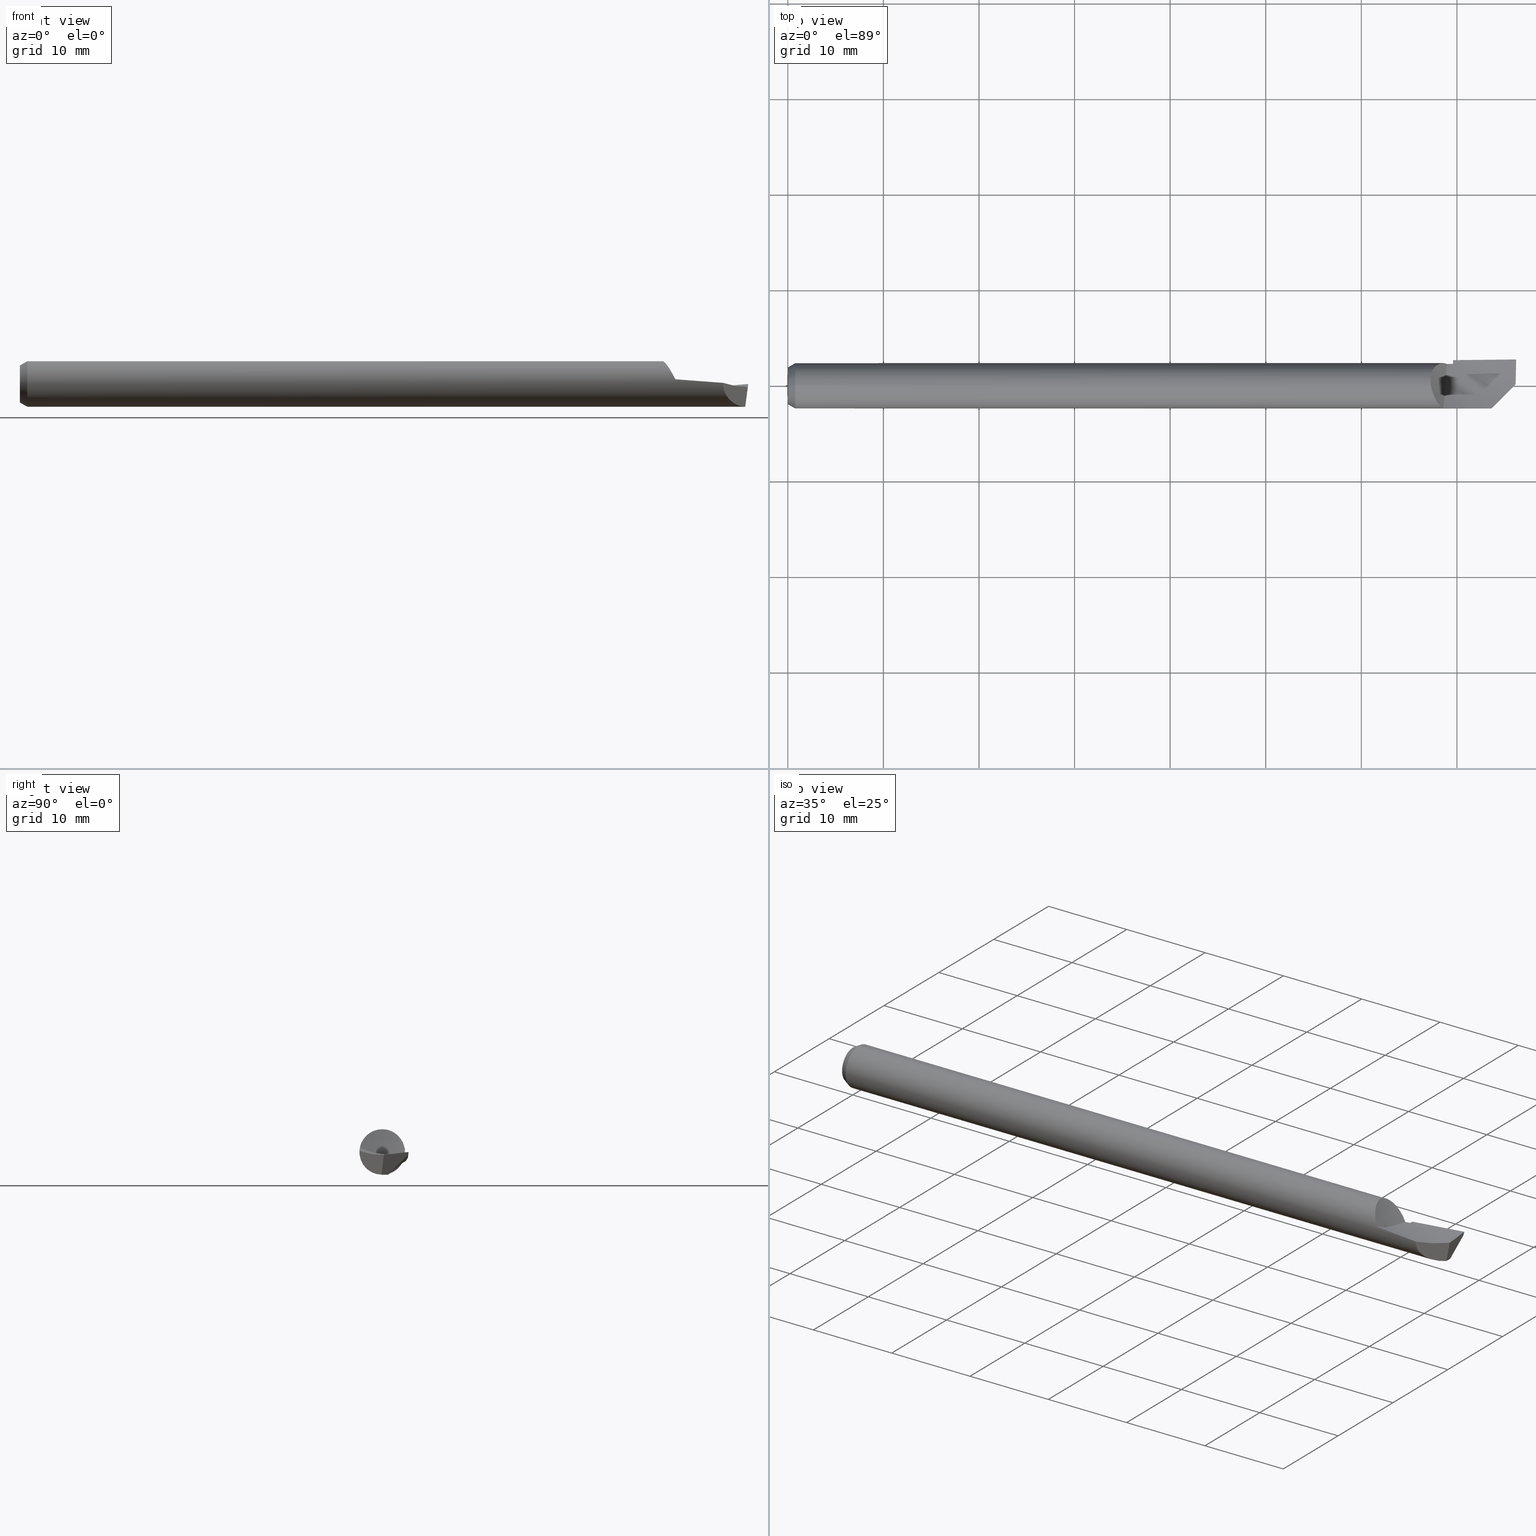
[diagram: canonical four-view strip — front | top / right | iso, engineering-drawing reading convention]
A machine part, canonical four-view strip (front | top / right | iso — engineering-drawing reading convention). The complete STEP part file that produces these views, byte-faithful:
ISO-10303-21;
HEADER;
FILE_DESCRIPTION (( 'STEP AP203' ),
    '1' );
FILE_NAME ('215757-HB210L.STEP',
    '2024-07-31T18:24:21',
    ( '' ),
    ( '' ),
    'SwSTEP 2.0',
    'SolidWorks 2024',
    '' );
FILE_SCHEMA (( 'CONFIG_CONTROL_DESIGN' ));
ENDSEC;

DATA;
#1 = CYLINDRICAL_SURFACE ( 'NONE', #328, 0.09364999999999999714 ) ;
#2 = ORIENTED_EDGE ( 'NONE', *, *, #272, .F. ) ;
#3 = DIRECTION ( 'NONE',  ( 0.000000000000000000, 0.2789911060392298858, 0.9602936856769428431 ) ) ;
#4 = CARTESIAN_POINT ( 'NONE',  ( 2.608888888888890367, -0.1464554548162472769, 0.06217323221623742568 ) ) ;
#5 = ORIENTED_EDGE ( 'NONE', *, *, #413, .F. ) ;
#6 = CARTESIAN_POINT ( 'NONE',  ( 2.421428571428573040, -0.06823486854704864657, -0.1112492264663436647 ) ) ;
#7 = CARTESIAN_POINT ( 'NONE',  ( 2.648731579005755954, 0.04212291331834908115, 0.08385177601506443867 ) ) ;
#8 = CARTESIAN_POINT ( 'NONE',  ( 2.740000000000000213, 0.01010341027200485978, -0.09310340273521444665 ) ) ;
#9 = ORIENTED_EDGE ( 'NONE', *, *, #608, .F. ) ;
#10 = APPROVAL_STATUS ( 'not_yet_approved' ) ;
#11 = EDGE_CURVE ( 'NONE', #238, #373, #43, .T. ) ;
#12 = DIRECTION ( 'NONE',  ( 0.000000000000000000, 0.000000000000000000, -1.000000000000000000 ) ) ;
#13 = CC_DESIGN_PERSON_AND_ORGANIZATION_ASSIGNMENT ( #613, #394, ( #73 ) ) ;
#14 = PLANE ( 'NONE',  #71 ) ;
#15 = VERTEX_POINT ( 'NONE', #429 ) ;
#16 = COORDINATED_UNIVERSAL_TIME_OFFSET ( 8, 0, .BEHIND. ) ;
#17 =( BOUNDED_CURVE ( )  B_SPLINE_CURVE ( 3, ( #324, #480, #331, #125 ),
 .UNSPECIFIED., .F., .T. ) 
 B_SPLINE_CURVE_WITH_KNOTS ( ( 4, 4 ),
 ( 9.255808676291139381E-05, 0.0004782894125386866571 ),
 .UNSPECIFIED. ) 
 CURVE ( )  GEOMETRIC_REPRESENTATION_ITEM ( )  RATIONAL_B_SPLINE_CURVE ( ( 0.9805422023702108358, 0.9794517822317697631, 0.9784376960691193448, 0.9774999438822595810 ) ) 
 REPRESENTATION_ITEM ( '' )  );
#18 = CARTESIAN_POINT ( 'NONE',  ( 2.740000000000011315, 0.1060807370296387303, -0.02278436374465247008 ) ) ;
#19 = FACE_OUTER_BOUND ( 'NONE', #576, .T. ) ;
#20 = ORIENTED_EDGE ( 'NONE', *, *, #11, .F. ) ;
#21 = B_SPLINE_CURVE_WITH_KNOTS ( 'NONE', 3,
 ( #155, #203, #108, #619 ),
 .UNSPECIFIED., .F., .F.,
 ( 4, 4 ),
 ( 8.350654211293258441E-05, 0.003719369236180132456 ),
 .UNSPECIFIED. ) ;
#22 = DIRECTION ( 'NONE',  ( 0.8660254037844377084, 0.000000000000000000, -0.5000000000000012212 ) ) ;
#23 = CARTESIAN_POINT ( 'NONE',  ( 2.729999274822195510, 0.08034742759774916865, -0.04811042881477657629 ) ) ;
#24 = CARTESIAN_POINT ( 'NONE',  ( 2.998093014994710259, 0.1033114702713285454, -0.01516179632514422226 ) ) ;
#25 = ORIENTED_EDGE ( 'NONE', *, *, #295, .T. ) ;
#26 = B_SPLINE_CURVE_WITH_KNOTS ( 'NONE', 3,
 ( #585, #127, #281, #116 ),
 .UNSPECIFIED., .F., .F.,
 ( 4, 4 ),
 ( 0.0002546024990688713929, 0.006558907732038860190 ),
 .UNSPECIFIED. ) ;
#27 = CARTESIAN_POINT ( 'NONE',  ( 2.713645702931099191, 0.09128810367982466423, -0.02113646257700518838 ) ) ;
#28 = APPROVAL_STATUS ( 'not_yet_approved' ) ;
#29 = DIRECTION ( 'NONE',  ( 0.000000000000000000, 0.000000000000000000, 1.000000000000000000 ) ) ;
#30 = EDGE_CURVE ( 'NONE', #238, #315, #17, .T. ) ;
#31 = EDGE_CURVE ( 'NONE', #15, #461, #356, .T. ) ;
#32 = CARTESIAN_POINT ( 'NONE',  ( 2.657153545848679688, 0.06553243476681322455, 0.06690271648742038280 ) ) ;
#33 = CALENDAR_DATE ( 2024, 31, 7 ) ;
#34 = CARTESIAN_POINT ( 'NONE',  ( 2.648823123821432368, 0.0002083311573135265935, 0.09365000102506688962 ) ) ;
#35 = DIRECTION ( 'NONE',  ( 0.000000000000000000, 0.000000000000000000, 1.000000000000000000 ) ) ;
#36 = CARTESIAN_POINT ( 'NONE',  ( 2.648000000000000131, 0.03666875582908381281, 0.08617264557820557280 ) ) ;
#37 = VECTOR ( 'NONE', #45, 39.37007874015748143 ) ;
#38 = LOCAL_TIME ( 11, 24, 21.00000000000000000, #556 ) ;
#39 = CARTESIAN_POINT ( 'NONE',  ( 2.710961540492777377, 0.09224549721883372466, -0.01700594925194776064 ) ) ;
#40 = CARTESIAN_POINT ( 'NONE',  ( 2.729999274822195510, 0.08034742759774916865, -0.04811042881477657629 ) ) ;
#41 = DIRECTION ( 'NONE',  ( 0.000000000000000000, 0.000000000000000000, 1.000000000000000000 ) ) ;
#42 = DIRECTION ( 'NONE',  ( -1.000000000000000000, -0.000000000000000000, -0.000000000000000000 ) ) ;
#43 =( BOUNDED_CURVE ( )  B_SPLINE_CURVE ( 2, ( #181, #234, #440 ),
 .UNSPECIFIED., .F., .T. ) 
 B_SPLINE_CURVE_WITH_KNOTS ( ( 3, 3 ),
 ( 0.6680663190920054229, 1.000000000000000000 ),
 .UNSPECIFIED. ) 
 CURVE ( )  GEOMETRIC_REPRESENTATION_ITEM ( )  RATIONAL_B_SPLINE_CURVE ( ( 0.9805422023702408119, 0.9779011347166750578, 0.9859596877570645512 ) ) 
 REPRESENTATION_ITEM ( '' )  );
#44 = PLANE ( 'NONE',  #318 ) ;
#45 = DIRECTION ( 'NONE',  ( 0.000000000000000000, -1.000000000000000000, -0.000000000000000000 ) ) ;
#46 = VERTEX_POINT ( 'NONE', #652 ) ;
#47 = VECTOR ( 'NONE', #77, 39.37007874015748143 ) ;
#48 = CARTESIAN_POINT ( 'NONE',  ( 2.740000000000000213, 0.000000000000000000, 0.000000000000000000 ) ) ;
#49 = EDGE_LOOP ( 'NONE', ( #191, #208, #164, #135, #322, #337 ) ) ;
#50 = ADVANCED_FACE ( 'NONE', ( #596 ), #456, .T. ) ;
#51 = EDGE_CURVE ( 'NONE', #389, #623, #408, .T. ) ;
#52 = DIRECTION ( 'NONE',  ( 1.000000000000000000, 0.000000000000000000, 0.000000000000000000 ) ) ;
#53 = PLANE ( 'NONE',  #640 ) ;
#54 = VERTEX_POINT ( 'NONE', #241 ) ;
#55 = LINE ( 'NONE', #368, #481 ) ;
#56 = VERTEX_POINT ( 'NONE', #669 ) ;
#57 = AXIS2_PLACEMENT_3D ( 'NONE', #59, #591, #3 ) ;
#58 = AXIS2_PLACEMENT_3D ( 'NONE', #513, #41, #624 ) ;
#59 = CARTESIAN_POINT ( 'NONE',  ( 2.648000000000000131, 0.1361715977094479224, 0.4687057136170372784 ) ) ;
#60 = DIRECTION ( 'NONE',  ( 0.000000000000000000, -0.000000000000000000, 1.000000000000000000 ) ) ;
#61 = ORIENTED_EDGE ( 'NONE', *, *, #245, .T. ) ;
#62 = CARTESIAN_POINT ( 'NONE',  ( 2.648000000000000131, 0.000000000000000000, 0.000000000000000000 ) ) ;
#63 = CARTESIAN_POINT ( 'NONE',  ( 2.660267250213738333, -0.04047724806400845171, 0.08466018272255887434 ) ) ;
#64 = ORIENTED_EDGE ( 'NONE', *, *, #244, .T. ) ;
#65 = CARTESIAN_POINT ( 'NONE',  ( 2.987532024933764241, -0.002509253967205157896, -0.09364999999999999714 ) ) ;
#66 = ORIENTED_EDGE ( 'NONE', *, *, #75, .F. ) ;
#67 = ADVANCED_FACE ( 'NONE', ( #458 ), #507, .T. ) ;
#68 = B_SPLINE_CURVE_WITH_KNOTS ( 'NONE', 3,
 ( #651, #121, #444, #180, #488, #377, #439, #176, #124, #321 ),
 .UNSPECIFIED., .F., .F.,
 ( 4, 3, 3, 4 ),
 ( 0.000000000000000000, 0.0001024766680105460346, 0.0002561918832182322886, 0.0004099073060419816780 ),
 .UNSPECIFIED. ) ;
#69 = APPLICATION_PROTOCOL_DEFINITION ( 'international standard', 'config_control_design', 1994, #544 ) ;
#70 = CARTESIAN_POINT ( 'NONE',  ( 2.700193042709060354, -0.09159678206204596718, 0.01949988679965270963 ) ) ;
#71 = AXIS2_PLACEMENT_3D ( 'NONE', #172, #545, #592 ) ;
#72 = CARTESIAN_POINT ( 'NONE',  ( 2.614285714285715212, 0.09364225179700762236, -0.04619814537202305421 ) ) ;
#73 = PRODUCT_DEFINITION_FORMATION_WITH_SPECIFIED_SOURCE ( 'ANY', '', #257, .NOT_KNOWN. ) ;
#74 = CARTESIAN_POINT ( 'NONE',  ( 2.987763293907419904, 0.02399154554081830634, -0.09364999999999999714 ) ) ;
#75 = EDGE_CURVE ( 'NONE', #543, #552, #459, .T. ) ;
#76 = PLANE ( 'NONE',  #605 ) ;
#77 = DIRECTION ( 'NONE',  ( -1.000000000000000000, -0.000000000000000000, -0.000000000000000000 ) ) ;
#78 = ORIENTED_EDGE ( 'NONE', *, *, #11, .T. ) ;
#79 = CARTESIAN_POINT ( 'NONE',  ( 2.671780070111328342, 0.08324920488106214711, 0.04294035540791946159 ) ) ;
#80 = CARTESIAN_POINT ( 'NONE',  ( 2.648853733171861347, -8.222118150690407239E-07, 0.09365456280322455307 ) ) ;
#81 = ORIENTED_EDGE ( 'NONE', *, *, #313, .F. ) ;
#82 = CARTESIAN_POINT ( 'NONE',  ( 2.999392605994886107, 0.09182044360717109277, -0.003761190601293711629 ) ) ;
#83 = EDGE_CURVE ( 'NONE', #259, #269, #236, .T. ) ;
#84 = EDGE_LOOP ( 'NONE', ( #287, #675, #466, #603 ) ) ;
#85 = AXIS2_PLACEMENT_3D ( 'NONE', #243, #149, #666 ) ;
#86 = CARTESIAN_POINT ( 'NONE',  ( 2.694519981529421404, 0.09329194702683742124, 0.008192209811309534087 ) ) ;
#87 = PERSON_AND_ORGANIZATION ( #301, #606 ) ;
#88 = DIRECTION ( 'NONE',  ( 1.000000000000000000, 0.000000000000000000, 0.000000000000000000 ) ) ;
#89 = CARTESIAN_POINT ( 'NONE',  ( 2.655662571347638501, 0.06272228013036625083, 0.06957321465527964433 ) ) ;
#90 = CARTESIAN_POINT ( 'NONE',  ( 2.716830442783150001, 0.1061611452323789617, -0.02444580399539316232 ) ) ;
#91 = CARTESIAN_POINT ( 'NONE',  ( 2.704122698830285998, 0.09357548210034773162, -0.006485616146303971145 ) ) ;
#92 = PERSON_AND_ORGANIZATION_ROLE ( 'classification_officer' ) ;
#93 = CARTESIAN_POINT ( 'NONE',  ( 2.740000000000000213, 0.09364999999999999714, -0.09364999999999999714 ) ) ;
#94 =( BOUNDED_CURVE ( )  B_SPLINE_CURVE ( 2, ( #24, #184, #375 ),
 .UNSPECIFIED., .F., .T. ) 
 B_SPLINE_CURVE_WITH_KNOTS ( ( 3, 3 ),
 ( 0.002502368612308748450, 0.3365654910811018419 ),
 .UNSPECIFIED. ) 
 CURVE ( )  GEOMETRIC_REPRESENTATION_ITEM ( )  RATIONAL_B_SPLINE_CURVE ( ( 0.9998773835097440887, 0.9917339761046763957, 0.9945822379532470725 ) ) 
 REPRESENTATION_ITEM ( '' )  );
#95 = AXIS2_PLACEMENT_3D ( 'NONE', #582, #112, #320 ) ;
#96 = CC_DESIGN_SECURITY_CLASSIFICATION ( #442, ( #73 ) ) ;
#97 = CARTESIAN_POINT ( 'NONE',  ( 2.648000000000001908, -0.004899846547459479028, 0.09241289850418150931 ) ) ;
#98 = CARTESIAN_POINT ( 'NONE',  ( 2.421428571428573040, 0.08632518439822819967, -0.06102962101362140179 ) ) ;
#99 = CARTESIAN_POINT ( 'NONE',  ( 2.804444444444444962, -0.05801151602296240190, -0.01215007406928548216 ) ) ;
#100 = ORIENTED_EDGE ( 'NONE', *, *, #83, .F. ) ;
#101 = ADVANCED_FACE ( 'NONE', ( #351 ), #206, .T. ) ;
#102 = FACE_OUTER_BOUND ( 'NONE', #84, .T. ) ;
#103 = EDGE_CURVE ( 'NONE', #46, #543, #574, .T. ) ;
#104 = EDGE_LOOP ( 'NONE', ( #111, #398, #635, #133 ) ) ;
#105 = PERSON_AND_ORGANIZATION_ROLE ( 'design_owner' ) ;
#106 = CARTESIAN_POINT ( 'NONE',  ( 2.734997358170834225, 0.009725048957912103831, -0.09314446181012504822 ) ) ;
#107 = EDGE_LOOP ( 'NONE', ( #579, #659, #437, #317, #308, #114, #130, #220 ) ) ;
#108 = CARTESIAN_POINT ( 'NONE',  ( 2.930128296819551004, -0.06052170318045124731, -0.007005743369842811798 ) ) ;
#109 = PRODUCT_DEFINITION ( 'UNKNOWN', '', #73, #326 ) ;
#110 = DIRECTION ( 'NONE',  ( 1.000000000000000000, 0.000000000000000000, -0.000000000000000000 ) ) ;
#111 = ORIENTED_EDGE ( 'NONE', *, *, #295, .F. ) ;
#112 = DIRECTION ( 'NONE',  ( 1.000000000000000000, 0.000000000000000000, 0.000000000000000000 ) ) ;
#113 = CARTESIAN_POINT ( 'NONE',  ( 2.413333333333334885, 0.1493616491026159843, -0.06033940939105427587 ) ) ;
#114 = ORIENTED_EDGE ( 'NONE', *, *, #294, .T. ) ;
#115 = AXIS2_PLACEMENT_3D ( 'NONE', #500, #137, #616 ) ;
#116 = CARTESIAN_POINT ( 'NONE',  ( 2.987763293907419904, 0.02399154554081830634, -0.09364999999999999714 ) ) ;
#117 = DIRECTION ( 'NONE',  ( 1.000000000000000000, -0.000000000000000000, -0.000000000000000000 ) ) ;
#118 = ORIENTED_EDGE ( 'NONE', *, *, #51, .T. ) ;
#119 = COORDINATED_UNIVERSAL_TIME_OFFSET ( 8, 0, .BEHIND. ) ;
#120 = DIRECTION ( 'NONE',  ( -1.000000000000000000, -0.000000000000000000, -0.000000000000000000 ) ) ;
#121 = CARTESIAN_POINT ( 'NONE',  ( 2.998251865374560676, 0.1037458191330261348, -0.01389898307391907069 ) ) ;
#122 = ORIENTED_EDGE ( 'NONE', *, *, #224, .T. ) ;
#123 = CARTESIAN_POINT ( 'NONE',  ( 2.897117201850305079, -0.09353279814969600592, 0.004683820052929582589 ) ) ;
#124 = CARTESIAN_POINT ( 'NONE',  ( 2.999761529745958555, 0.1078543937081328369, -0.001896225925224536172 ) ) ;
#125 = CARTESIAN_POINT ( 'NONE',  ( 2.740000000000000213, 0.09093235533035093354, -0.02239708137674525229 ) ) ;
#126 = ADVANCED_FACE ( 'NONE', ( #400 ), #385, .T. ) ;
#127 = CARTESIAN_POINT ( 'NONE',  ( 2.822563398559102321, 0.01457830066443164228, -0.09364999999999995550 ) ) ;
#128 = VECTOR ( 'NONE', #222, 39.37007874015748854 ) ;
#129 = LINE ( 'NONE', #65, #339 ) ;
#130 = ORIENTED_EDGE ( 'NONE', *, *, #411, .T. ) ;
#131 = CARTESIAN_POINT ( 'NONE',  ( 0.000000000000000000, 0.000000000000000000, -0.07599999999999999811 ) ) ;
#132 = CARTESIAN_POINT ( 'NONE',  ( 0.03057069675359059061, 0.000000000000000000, 0.000000000000000000 ) ) ;
#133 = ORIENTED_EDGE ( 'NONE', *, *, #312, .T. ) ;
#134 = APPROVAL_DATE_TIME ( #497, #246 ) ;
#135 = ORIENTED_EDGE ( 'NONE', *, *, #588, .F. ) ;
#136 = VECTOR ( 'NONE', #22, 39.37007874015748854 ) ;
#137 = DIRECTION ( 'NONE',  ( 1.000000000000000000, 0.000000000000000000, 0.000000000000000000 ) ) ;
#138 = EDGE_LOOP ( 'NONE', ( #384, #266, #526, #433, #649 ) ) ;
#139 = CARTESIAN_POINT ( 'NONE',  ( 2.740000000000000213, 0.01010341027200485978, -0.09310340273521444665 ) ) ;
#140 = COORDINATED_UNIVERSAL_TIME_OFFSET ( 8, 0, .BEHIND. ) ;
#141 = CARTESIAN_POINT ( 'NONE',  ( 2.739999999999999769, 0.08074344207419087427, -0.04744279778861887342 ) ) ;
#142 = CARTESIAN_POINT ( 'NONE',  ( 2.674651292824941962, 0.08538032817279563036, 0.03847803143859999248 ) ) ;
#143 = PERSON_AND_ORGANIZATION_ROLE ( 'design_supplier' ) ;
#144 = CARTESIAN_POINT ( 'NONE',  ( 2.894336912536108919, -0.09631308746389261044, -0.05083672434967949350 ) ) ;
#145 = CARTESIAN_POINT ( 'NONE',  ( 2.807142857142857828, 0.1085000000000000131, -0.01718471177521218446 ) ) ;
#146 = CARTESIAN_POINT ( 'NONE',  ( 2.734997358171129545, 0.08055064010576531985, -0.04777092967153879349 ) ) ;
#147 = APPROVAL_PERSON_ORGANIZATION ( #380, #246, #187 ) ;
#148 = CARTESIAN_POINT ( 'NONE',  ( 2.228571428571430424, 0.07478306174353623048, -0.07287409439362664554 ) ) ;
#149 = DIRECTION ( 'NONE',  ( -1.000000000000000000, -0.000000000000000000, -0.000000000000000000 ) ) ;
#150 = ORIENTED_EDGE ( 'NONE', *, *, #272, .T. ) ;
#151 = EDGE_CURVE ( 'NONE', #238, #546, #170, .T. ) ;
#152 = EDGE_CURVE ( 'NONE', #638, #416, #482, .T. ) ;
#153 = CARTESIAN_POINT ( 'NONE',  ( 3.000000000000000444, 0.05471458349321915021, -0.02081601275344908270 ) ) ;
#154 = VERTEX_POINT ( 'NONE', #662 ) ;
#155 = CARTESIAN_POINT ( 'NONE',  ( 2.997655768038555379, 0.007005768038554139807, -0.01187811945948918924 ) ) ;
#156 = CARTESIAN_POINT ( 'NONE',  ( 2.217777777777779846, -0.1200748292999250927, 0.1043874820955170424 ) ) ;
#157 = ORIENTED_EDGE ( 'NONE', *, *, #51, .F. ) ;
#158 = CIRCLE ( 'NONE', #298, 0.07599999999999999811 ) ;
#159 = CARTESIAN_POINT ( 'NONE',  ( 2.228571428571430424, 0.08777834388968180912, -0.06377469987373332594 ) ) ;
#160 = CARTESIAN_POINT ( 'NONE',  ( 2.668957525983355783, -0.05845340694801681725, 0.07316804903374447833 ) ) ;
#161 = VERTEX_POINT ( 'NONE', #204 ) ;
#162 = CARTESIAN_POINT ( 'NONE',  ( 2.998093014994710259, 0.1033114702713285454, -0.01516179632514422226 ) ) ;
#163 = CARTESIAN_POINT ( 'NONE',  ( 2.413333333333334885, -0.05892680970412268737, 0.006371137203487211263 ) ) ;
#164 = ORIENTED_EDGE ( 'NONE', *, *, #610, .T. ) ;
#165 = PERSON_AND_ORGANIZATION ( #301, #606 ) ;
#166 = CARTESIAN_POINT ( 'NONE',  ( 2.715594912558478846, 0.09047690327886794004, -0.02417131508764841161 ) ) ;
#167 = CARTESIAN_POINT ( 'NONE',  ( 0.000000000000000000, 0.000000000000000000, 0.000000000000000000 ) ) ;
#168 = ORIENTED_EDGE ( 'NONE', *, *, #547, .T. ) ;
#169 = DIRECTION ( 'NONE',  ( -1.000000000000000000, -0.000000000000000000, -0.000000000000000000 ) ) ;
#170 = CIRCLE ( 'NONE', #510, 0.1084999999999999992 ) ;
#171 = DIRECTION ( 'NONE',  ( 0.000000000000000000, 0.000000000000000000, 1.000000000000000000 ) ) ;
#172 = CARTESIAN_POINT ( 'NONE',  ( 2.882908368565248125, -0.1077416314347533766, -0.09999999999999999167 ) ) ;
#173 = VERTEX_POINT ( 'NONE', #406 ) ;
#174 = LINE ( 'NONE', #288, #136 ) ;
#175 = EDGE_CURVE ( 'NONE', #173, #389, #366, .T. ) ;
#176 = CARTESIAN_POINT ( 'NONE',  ( 2.999523095650473703, 0.1072076760968982967, -0.003792078390238544112 ) ) ;
#177 = ADVANCED_FACE ( 'NONE', ( #353 ), #563, .F. ) ;
#178 = UNCERTAINTY_MEASURE_WITH_UNIT (LENGTH_MEASURE( 1.000000000000000082E-05 ), #573, 'distance_accuracy_value', 'NONE');
#179 = CARTESIAN_POINT ( 'NONE',  ( 2.705461078765242888, -0.03340762941110823198, -0.004274625996444173480 ) ) ;
#180 = CARTESIAN_POINT ( 'NONE',  ( 2.998569614866263500, 0.1046130388257509453, -0.01137285464977744187 ) ) ;
#181 = CARTESIAN_POINT ( 'NONE',  ( 2.740000000000000657, 0.1061466846906607003, -0.02247512690023037440 ) ) ;
#182 = B_SPLINE_CURVE_WITH_KNOTS ( 'NONE', 3,
 ( #387, #82, #599, #399, #499, #333 ),
 .UNSPECIFIED., .F., .F.,
 ( 4, 2, 4 ),
 ( 1.390217896785067265E-20, 0.001298834698926967096, 0.002597669397853934192 ),
 .UNSPECIFIED. ) ;
#183 = CARTESIAN_POINT ( 'NONE',  ( 2.997655768038555379, 0.007005768038554139807, -0.01187811945948918924 ) ) ;
#184 = CARTESIAN_POINT ( 'NONE',  ( 2.869734063093712262, 0.1017135818884408738, -0.02604970133489085959 ) ) ;
#185 = LOCAL_TIME ( 11, 24, 21.00000000000000000, #140 ) ;
#186 = CARTESIAN_POINT ( 'NONE',  ( 2.998093014994710259, 0.1033114702713285454, -0.01516179632514422226 ) ) ;
#187 = APPROVAL_ROLE ( '' ) ;
#188 = CARTESIAN_POINT ( 'NONE',  ( 2.694772460887948196, 0.09332505324249035228, 0.007808570231833748300 ) ) ;
#189 = CARTESIAN_POINT ( 'NONE',  ( 0.03057069675359059061, 0.000000000000000000, 0.000000000000000000 ) ) ;
#190 = APPROVAL_ROLE ( '' ) ;
#191 = ORIENTED_EDGE ( 'NONE', *, *, #31, .T. ) ;
#192 = CARTESIAN_POINT ( 'NONE',  ( 2.659837862559129018, 0.07019894292448461415, 0.06219465053792666565 ) ) ;
#193 = CARTESIAN_POINT ( 'NONE',  ( 2.648774162755310968, 0.0005224480527187959182, 0.09364890627534445955 ) ) ;
#194 = CARTESIAN_POINT ( 'NONE',  ( 2.674087616056178174, 0.08498293252717993573, 0.03935073517130147774 ) ) ;
#195 = AXIS2_PLACEMENT_3D ( 'NONE', #297, #303, #248 ) ;
#196 = LINE ( 'NONE', #93, #37 ) ;
#197 = CARTESIAN_POINT ( 'NONE',  ( 2.666568753093929711, 0.07847585622821494356, 0.05118348085090287242 ) ) ;
#198 = EDGE_CURVE ( 'NONE', #370, #56, #196, .T. ) ;
#199 = DATE_AND_TIME ( #403, #185 ) ;
#200 = CARTESIAN_POINT ( 'NONE',  ( 2.699629502767317835, -0.1004152028337105679, 0.02348229429743947660 ) ) ;
#201 = ADVANCED_FACE ( 'NONE', ( #364 ), #1, .T. ) ;
#202 = CARTESIAN_POINT ( 'NONE',  ( 2.711257858874154270, 0.03503257738335101984, -0.02446814605735119982 ) ) ;
#203 = CARTESIAN_POINT ( 'NONE',  ( 2.963644875374282783, -0.02700512462571755257, -0.01248061532669236980 ) ) ;
#204 = CARTESIAN_POINT ( 'NONE',  ( 2.739999999999999769, 0.09788107471506568569, -0.03636530173190489351 ) ) ;
#205 = CARTESIAN_POINT ( 'NONE',  ( 2.807142857142857828, 0.1009593191957870867, -0.03136666973042469969 ) ) ;
#206 = B_SPLINE_SURFACE_WITH_KNOTS ( 'NONE', 1, 3, ( 
 ( #566, #97, #450, #250 ),
 ( #200, #557, #202, #90 ) ),
 .UNSPECIFIED., .F., .F., .F.,
 ( 2, 2 ),
 ( 4, 4 ),
 ( 0.000000000000000000, 1.000000000000000000 ),
 ( 0.01066537585226142240, 0.01494871533108532019 ),
 .UNSPECIFIED. ) ;
#207 = CARTESIAN_POINT ( 'NONE',  ( 2.217777777777779846, -0.05650037319417050563, 0.01531991718997334669 ) ) ;
#208 = ORIENTED_EDGE ( 'NONE', *, *, #313, .T. ) ;
#209 =( NAMED_UNIT ( * ) PLANE_ANGLE_UNIT ( ) SI_UNIT ( $, .RADIAN. ) );
#210 = CARTESIAN_POINT ( 'NONE',  ( 2.668921519492839511, -0.05838966857612346018, 0.07321969953285870081 ) ) ;
#211 = EDGE_LOOP ( 'NONE', ( #78, #643, #230 ) ) ;
#212 = CARTESIAN_POINT ( 'NONE',  ( 2.676653163846024697, -0.07108318674311248087, 0.06187157980703874433 ) ) ;
#213 = EDGE_LOOP ( 'NONE', ( #365, #25, #357, #5 ) ) ;
#214 = AXIS2_PLACEMENT_3D ( 'NONE', #404, #291, #29 ) ;
#215 = CARTESIAN_POINT ( 'NONE',  ( 2.608888888888889479, 0.04560415947165991080, -0.03670494071200245539 ) ) ;
#216 = ORIENTED_EDGE ( 'NONE', *, *, #505, .F. ) ;
#217 = PERSON_AND_ORGANIZATION ( #301, #606 ) ;
#218 = DIRECTION ( 'NONE',  ( 0.000000000000000000, 0.000000000000000000, 1.000000000000000000 ) ) ;
#219 = DIRECTION ( 'NONE',  ( 0.000000000000000000, 0.000000000000000000, 1.000000000000000000 ) ) ;
#220 = ORIENTED_EDGE ( 'NONE', *, *, #312, .F. ) ;
#221 = APPROVAL_ROLE ( '' ) ;
#222 = DIRECTION ( 'NONE',  ( 0.8660254037844377084, 6.123233995736780827E-17, 0.5000000000000012212 ) ) ;
#223 = ORIENTED_EDGE ( 'NONE', *, *, #378, .T. ) ;
#224 = EDGE_CURVE ( 'NONE', #543, #46, #55, .T. ) ;
#225 = EDGE_CURVE ( 'NONE', #558, #475, #460, .T. ) ;
#226 = CARTESIAN_POINT ( 'NONE',  ( 2.700193042709059466, -0.09159678206204596718, 0.01949988679965270963 ) ) ;
#227 = CARTESIAN_POINT ( 'NONE',  ( 2.652848608369792860, -0.01951221009786592228, 0.09225725620059177512 ) ) ;
#228 = ORIENTED_EDGE ( 'NONE', *, *, #342, .T. ) ;
#229 = CARTESIAN_POINT ( 'NONE',  ( 0.03057069675359059061, 1.146881727401496266E-17, 0.09364999999999999714 ) ) ;
#230 = ORIENTED_EDGE ( 'NONE', *, *, #151, .F. ) ;
#231 = CARTESIAN_POINT ( 'NONE',  ( 2.987553922861389655, 0.000000000000000000, -0.09364999999999999714 ) ) ;
#232 = DIRECTION ( 'NONE',  ( -1.000000000000000000, -0.000000000000000000, -0.000000000000000000 ) ) ;
#233 =( BOUNDED_CURVE ( )  B_SPLINE_CURVE ( 2, ( #530, #427, #18 ),
 .UNSPECIFIED., .F., .F. ) 
 B_SPLINE_CURVE_WITH_KNOTS ( ( 3, 3 ),
 ( 0.000000000000000000, 0.3365654910810868539 ),
 .UNSPECIFIED. ) 
 CURVE ( )  GEOMETRIC_REPRESENTATION_ITEM ( )  RATIONAL_B_SPLINE_CURVE ( ( 1.000000000000000000, 0.9917126406127588778, 0.9945822379532467394 ) ) 
 REPRESENTATION_ITEM ( '' )  );
#234 = CARTESIAN_POINT ( 'NONE',  ( 2.870718729444908135, 0.1084999999999999853, -0.01136076838170600213 ) ) ;
#235 = CARTESIAN_POINT ( 'NONE',  ( 2.740000000000011315, 0.1060807370296387303, -0.02278436374465247008 ) ) ;
#236 = CIRCLE ( 'NONE', #85, 0.09364999999999999714 ) ;
#237 = CARTESIAN_POINT ( 'NONE',  ( 2.614285714285715212, -0.04937609166404756389, -0.1190696311099668364 ) ) ;
#238 = VERTEX_POINT ( 'NONE', #268 ) ;
#239 = CARTESIAN_POINT ( 'NONE',  ( 2.983648606709209172, -0.007001393290791912104, -0.1249574340483061846 ) ) ;
#240 = CALENDAR_DATE ( 2024, 31, 7 ) ;
#241 = CARTESIAN_POINT ( 'NONE',  ( 2.715594912558478846, 0.09047690327886794004, -0.02417131508764841161 ) ) ;
#242 = CARTESIAN_POINT ( 'NONE',  ( 2.662293407963907566, 0.07366403736510236666, 0.05809885532553645676 ) ) ;
#243 = CARTESIAN_POINT ( 'NONE',  ( 0.03057069675359059061, 0.000000000000000000, 0.000000000000000000 ) ) ;
#244 = EDGE_CURVE ( 'NONE', #315, #552, #255, .T. ) ;
#245 = EDGE_CURVE ( 'NONE', #363, #46, #278, .T. ) ;
#246 = APPROVAL ( #10, 'UNSPECIFIED' ) ;
#247 = PERSON_AND_ORGANIZATION_ROLE ( 'creator' ) ;
#248 = DIRECTION ( 'NONE',  ( 0.000000000000000000, 0.000000000000000000, -1.000000000000000000 ) ) ;
#249 = B_SPLINE_CURVE_WITH_KNOTS ( 'NONE', 3,
 ( #166, #276, #325, #179, #374, #70 ),
 .UNSPECIFIED., .F., .F.,
 ( 4, 2, 4 ),
 ( 0.000000000000000000, 0.5000000000000000000, 1.000000000000000000 ),
 .UNSPECIFIED. ) ;
#250 = CARTESIAN_POINT ( 'NONE',  ( 2.647999999999999687, 0.1069463880967313069, 0.07909849010610427167 ) ) ;
#251 = CARTESIAN_POINT ( 'NONE',  ( 2.987533092774547150, -0.003116907225453840850, -0.09359811637713615073 ) ) ;
#252 = PRODUCT_RELATED_PRODUCT_CATEGORY ( 'detail', '', ( #257 ) ) ;
#253 =( NAMED_UNIT ( * ) SI_UNIT ( $, .STERADIAN. ) SOLID_ANGLE_UNIT ( ) );
#254 = FACE_OUTER_BOUND ( 'NONE', #539, .T. ) ;
#255 = CIRCLE ( 'NONE', #280, 0.09364999999999999714 ) ;
#256 = ORIENTED_EDGE ( 'NONE', *, *, #485, .F. ) ;
#257 = PRODUCT ( '215757-HB210L', '215757-HB210L', '', ( #457 ) ) ;
#258 = CARTESIAN_POINT ( 'NONE',  ( 2.669408579989107189, -0.05925361579904375731, 0.07252248217185128243 ) ) ;
#259 = VERTEX_POINT ( 'NONE', #310 ) ;
#260 = ADVANCED_FACE ( 'NONE', ( #254 ), #344, .T. ) ;
#261 = FACE_OUTER_BOUND ( 'NONE', #536, .T. ) ;
#262 = DIRECTION ( 'NONE',  ( 0.000000000000000000, 0.000000000000000000, 1.000000000000000000 ) ) ;
#263 = ORIENTED_EDGE ( 'NONE', *, *, #245, .F. ) ;
#264 = ADVANCED_FACE ( 'NONE', ( #102 ), #53, .F. ) ;
#265 = CARTESIAN_POINT ( 'NONE',  ( 0.03057069675359059061, 1.146881727401496266E-17, -0.09364999999999999714 ) ) ;
#266 = ORIENTED_EDGE ( 'NONE', *, *, #561, .F. ) ;
#267 = AXIS2_PLACEMENT_3D ( 'NONE', #506, #551, #35 ) ;
#268 = CARTESIAN_POINT ( 'NONE',  ( 2.740000000000000657, 0.1061466846906607003, -0.02247512690023037440 ) ) ;
#269 = VERTEX_POINT ( 'NONE', #265 ) ;
#270 = APPROVAL_STATUS ( 'not_yet_approved' ) ;
#271 = LINE ( 'NONE', #229, #128 ) ;
#272 = EDGE_CURVE ( 'NONE', #315, #54, #631, .T. ) ;
#273 = ORIENTED_EDGE ( 'NONE', *, *, #663, .T. ) ;
#274 = B_SPLINE_CURVE_WITH_KNOTS ( 'NONE', 3,
 ( #478, #7, #644, #487, #594, #290, #89, #451, #32, #494, #393, #192, #242, #197, #665, #612, #79, #338, #194, #501, #142, #656, #336, #443, #602, #562, #396, #607, #347, #555, #292, #86, #188, #390, #91, #39, #27, #438 ),
 .UNSPECIFIED., .F., .F.,
 ( 4, 2, 2, 1, 1, 2, 2, 2, 2, 1, 1, 1, 2, 2, 2, 2, 2, 1, 2, 2, 2, 4 ),
 ( 0.000000000000000000, 0.1250000000000851264, 0.1875000000001276756, 0.2187500000001489087, 0.2343750000001613432, 0.2421875000001675327, 0.2500000000001737499, 0.3750000000002465805, 0.4375000000002854939, 0.4687500000003073652, 0.4843750000003158029, 0.4921875000003201328, 0.4960937500003198553, 0.5000000000003195222, 0.6250000000002586820, 0.6875000000002282619, 0.7187500000002104983, 0.7343750000002016165, 0.7421875000001971756, 0.7500000000001926237, 0.8750000000000962563, 1.000000000000000000 ),
 .UNSPECIFIED. ) ;
#275 = APPROVAL ( #270, 'UNSPECIFIED' ) ;
#276 = CARTESIAN_POINT ( 'NONE',  ( 2.713059819998396627, 0.05925281071930989935, -0.02311055806310817820 ) ) ;
#277 = DIRECTION ( 'NONE',  ( 1.000000000000000000, 0.000000000000000000, 0.000000000000000000 ) ) ;
#278 =( BOUNDED_CURVE ( )  B_SPLINE_CURVE ( 2, ( #626, #106, #528 ),
 .UNSPECIFIED., .F., .T. ) 
 B_SPLINE_CURVE_WITH_KNOTS ( ( 3, 3 ),
 ( 0.3365654910811016753, 0.3494856403912289800 ),
 .UNSPECIFIED. ) 
 CURVE ( )  GEOMETRIC_REPRESENTATION_ITEM ( )  RATIONAL_B_SPLINE_CURVE ( ( 0.9945822379532471835, 0.9946923966803939976, 0.9948189969154069834 ) ) 
 REPRESENTATION_ITEM ( '' )  );
#279 = EDGE_LOOP ( 'NONE', ( #327, #216, #627, #157, #611 ) ) ;
#280 = AXIS2_PLACEMENT_3D ( 'NONE', #48, #474, #262 ) ;
#281 = CARTESIAN_POINT ( 'NONE',  ( 2.905162067882043786, 0.01930639470269341143, -0.09364999999999996938 ) ) ;
#282 = CARTESIAN_POINT ( 'NONE',  ( 2.421428571428573040, 0.08632518439822819967, -0.06102962101362140179 ) ) ;
#283 = CARTESIAN_POINT ( 'NONE',  ( 2.991181280851205937, 0.05065302880610503961, -0.06770867322618520645 ) ) ;
#284 = CARTESIAN_POINT ( 'NONE',  ( 0.000000000000000000, 0.000000000000000000, 0.09364999999999999714 ) ) ;
#285 = CARTESIAN_POINT ( 'NONE',  ( 0.000000000000000000, 1.038806647376742246E-17, 0.07599999999999999811 ) ) ;
#286 = CARTESIAN_POINT ( 'NONE',  ( 3.000000000000000444, -0.01016491419934357175, -0.1284999999999999754 ) ) ;
#287 = ORIENTED_EDGE ( 'NONE', *, *, #538, .T. ) ;
#288 = CARTESIAN_POINT ( 'NONE',  ( 0.03057069675359059061, 0.000000000000000000, -0.09364999999999999714 ) ) ;
#289 = CARTESIAN_POINT ( 'NONE',  ( 2.700000000000000178, 0.000000000000000000, -0.09364999999999999714 ) ) ;
#290 = CARTESIAN_POINT ( 'NONE',  ( 2.654840748994309330, 0.06097772784957117276, 0.07109433443434577671 ) ) ;
#291 = DIRECTION ( 'NONE',  ( -1.000000000000000000, -0.000000000000000000, -0.000000000000000000 ) ) ;
#292 = CARTESIAN_POINT ( 'NONE',  ( 2.693968417897632417, 0.09321453594628095751, 0.009030502199227652751 ) ) ;
#293 = SECURITY_CLASSIFICATION_LEVEL ( 'unclassified' ) ;
#294 = EDGE_CURVE ( 'NONE', #154, #173, #569, .T. ) ;
#295 = EDGE_CURVE ( 'NONE', #475, #259, #271, .T. ) ;
#296 = LINE ( 'NONE', #239, #471 ) ;
#297 = CARTESIAN_POINT ( 'NONE',  ( 0.03057069675359059061, 0.000000000000000000, 0.000000000000000000 ) ) ;
#298 = AXIS2_PLACEMENT_3D ( 'NONE', #329, #120, #218 ) ;
#299 = COORDINATED_UNIVERSAL_TIME_OFFSET ( 8, 0, .BEHIND. ) ;
#300 = CARTESIAN_POINT ( 'NONE',  ( 2.648576821489902144, 0.001826048862968334416, 0.09363472875895693937 ) ) ;
#301 = PERSON ( 'UNSPECIFIED', 'UNSPECIFIED', 'UNSPECIFIED', ('UNSPECIFIED'), ('UNSPECIFIED'), ('UNSPECIFIED') ) ;
#302 =( BOUNDED_CURVE ( )  B_SPLINE_CURVE ( 1, ( #668, #559 ),
 .UNSPECIFIED., .F., .T. ) 
 B_SPLINE_CURVE_WITH_KNOTS ( ( 2, 2 ),
 ( 0.002893631882954621985, 0.003411947105638064512 ),
 .UNSPECIFIED. ) 
 CURVE ( )  GEOMETRIC_REPRESENTATION_ITEM ( )  RATIONAL_B_SPLINE_CURVE ( ( 0.9945822379532474056, 0.9945822379532474056 ) ) 
 REPRESENTATION_ITEM ( '' )  );
#303 = DIRECTION ( 'NONE',  ( 1.000000000000000000, 0.000000000000000000, 0.000000000000000000 ) ) ;
#304 = CARTESIAN_POINT ( 'NONE',  ( 2.217777777777779846, 0.03202968257815186348, -0.04900093333530534945 ) ) ;
#305 = PERSON_AND_ORGANIZATION ( #301, #606 ) ;
#306 = CARTESIAN_POINT ( 'NONE',  ( 2.693124300786492231, -0.08870291174945736656, 0.03325054257018163206 ) ) ;
#307 = AXIS2_PLACEMENT_3D ( 'NONE', #189, #277, #479 ) ;
#308 = ORIENTED_EDGE ( 'NONE', *, *, #535, .F. ) ;
#309 = CARTESIAN_POINT ( 'NONE',  ( 3.000000000000000444, 0.1084999999999999992, 0.000000000000000000 ) ) ;
#310 = CARTESIAN_POINT ( 'NONE',  ( 0.03057069675359059061, 0.000000000000000000, 0.09364999999999999714 ) ) ;
#311 = ORIENTED_EDGE ( 'NONE', *, *, #608, .T. ) ;
#312 = EDGE_CURVE ( 'NONE', #269, #259, #554, .T. ) ;
#313 = EDGE_CURVE ( 'NONE', #461, #373, #68, .T. ) ;
#314 = CARTESIAN_POINT ( 'NONE',  ( 2.668578502057591617, -0.05777139929222745163, 0.07370850168012961501 ) ) ;
#315 = VERTEX_POINT ( 'NONE', #595 ) ;
#316 = CARTESIAN_POINT ( 'NONE',  ( 2.804444444444444962, 0.05141765096347571812, -0.02948195143761270925 ) ) ;
#317 = ORIENTED_EDGE ( 'NONE', *, *, #152, .T. ) ;
#318 = AXIS2_PLACEMENT_3D ( 'NONE', #570, #358, #670 ) ;
#319 = APPROVAL_PERSON_ORGANIZATION ( #658, #598, #190 ) ;
#320 = DIRECTION ( 'NONE',  ( 0.000000000000000000, 0.000000000000000000, -1.000000000000000000 ) ) ;
#321 = CARTESIAN_POINT ( 'NONE',  ( 3.000000000000000444, 0.1084999999999999992, 0.000000000000000000 ) ) ;
#322 = ORIENTED_EDGE ( 'NONE', *, *, #679, .F. ) ;
#323 = FACE_OUTER_BOUND ( 'NONE', #213, .T. ) ;
#324 = CARTESIAN_POINT ( 'NONE',  ( 2.740000000000000657, 0.1061466846906607142, -0.02247512690023037787 ) ) ;
#325 = CARTESIAN_POINT ( 'NONE',  ( 2.710526309159210889, 0.02787531357983590377, -0.01890264624611028704 ) ) ;
#326 = DESIGN_CONTEXT ( 'detailed design', #544, 'design' ) ;
#327 = ORIENTED_EDGE ( 'NONE', *, *, #294, .F. ) ;
#328 = AXIS2_PLACEMENT_3D ( 'NONE', #167, #415, #219 ) ;
#329 = CARTESIAN_POINT ( 'NONE',  ( 0.000000000000000000, 0.000000000000000000, 0.000000000000000000 ) ) ;
#330 = CARTESIAN_POINT ( 'NONE',  ( 2.648000000000000131, 0.006204244709569405221, 0.09344426064549808675 ) ) ;
#331 = CARTESIAN_POINT ( 'NONE',  ( 2.740000000000000213, 0.09600583268713319685, -0.02250031455102175643 ) ) ;
#332 = CALENDAR_DATE ( 2024, 31, 7 ) ;
#333 = CARTESIAN_POINT ( 'NONE',  ( 2.997655768038555379, 0.007005768038554139807, -0.01187811945948918924 ) ) ;
#334 = LINE ( 'NONE', #648, #47 ) ;
#335 = ORIENTED_EDGE ( 'NONE', *, *, #198, .T. ) ;
#336 = CARTESIAN_POINT ( 'NONE',  ( 2.677129380349655641, 0.08708831898437727204, 0.03464762275842025313 ) ) ;
#337 = ORIENTED_EDGE ( 'NONE', *, *, #359, .F. ) ;
#338 = CARTESIAN_POINT ( 'NONE',  ( 2.673307641915291466, 0.08441651375760907128, 0.04056095321443192042 ) ) ;
#339 = VECTOR ( 'NONE', #436, 39.37007874015748143 ) ;
#340 = ADVANCED_FACE ( 'NONE', ( #19 ), #14, .F. ) ;
#341 = CARTESIAN_POINT ( 'NONE',  ( 2.648121537467483577, 0.005183671323936305669, 0.09351202468710621829 ) ) ;
#342 = EDGE_CURVE ( 'NONE', #461, #161, #94, .T. ) ;
#343 = ORIENTED_EDGE ( 'NONE', *, *, #411, .F. ) ;
#344 =( BOUNDED_SURFACE ( )  B_SPLINE_SURFACE ( 3, 2, ( 
 ( #372, #575, #4, #634, #156 ),
 ( #525, #99, #622, #163, #207 ),
 ( #153, #316, #215, #417, #304 ),
 ( #518, #355, #583, #113, #531 ) ),
 .UNSPECIFIED., .F., .F., .F. ) 
 B_SPLINE_SURFACE_WITH_KNOTS ( ( 4, 4 ),
 ( 3, 2, 3 ),
 ( 0.000000000000000000, 1.000000000000000000 ),
 ( 0.000000000000000000, 0.5000000000000000000, 1.000000000000000000 ),
 .UNSPECIFIED. ) 
 GEOMETRIC_REPRESENTATION_ITEM ( )  RATIONAL_B_SPLINE_SURFACE ( (
 ( 1.000000000000000000, 0.9876883405951377704, 1.000000000000000000, 0.9876883405951377704, 1.000000000000000000),
 ( 0.9656170249359767865, 0.9537286770094286492, 0.9656170249359767865, 0.9537286770094286492, 0.9656170249359767865),
 ( 0.9656170249359767865, 0.9537286770094286492, 0.9656170249359767865, 0.9537286770094286492, 0.9656170249359767865),
 ( 1.000000000000000000, 0.9876883405951377704, 1.000000000000000000, 0.9876883405951377704, 1.000000000000000000) ) ) 
 REPRESENTATION_ITEM ( '' )  SURFACE ( )  );
#345 = CARTESIAN_POINT ( 'NONE',  ( 2.739999999999999769, 0.08074344207419087427, -0.04744279778861887342 ) ) ;
#346 = DIRECTION ( 'NONE',  ( 0.000000000000000000, 0.000000000000000000, -1.000000000000000000 ) ) ;
#347 = CARTESIAN_POINT ( 'NONE',  ( 2.692346411141291807, 0.09294507949201641361, 0.01149717748004344155 ) ) ;
#348 = CARTESIAN_POINT ( 'NONE',  ( 2.740000000000000213, 0.000000000000000000, 0.000000000000000000 ) ) ;
#349 = EDGE_LOOP ( 'NONE', ( #311, #223, #100, #343, #630, #587, #469, #2, #64, #66, #529, #263 ) ) ;
#350 = CARTESIAN_POINT ( 'NONE',  ( 2.614285714285715212, 0.09364225179700762236, -0.04619814537202305421 ) ) ;
#351 = FACE_OUTER_BOUND ( 'NONE', #279, .T. ) ;
#352 = FACE_OUTER_BOUND ( 'NONE', #49, .T. ) ;
#353 = FACE_OUTER_BOUND ( 'NONE', #426, .T. ) ;
#354 = APPLICATION_PROTOCOL_DEFINITION ( 'international standard', 'config_control_design', 1994, #493 ) ;
#355 = CARTESIAN_POINT ( 'NONE',  ( 2.804444444444444962, 0.1606972725960162107, -0.01123090061018719617 ) ) ;
#356 = B_SPLINE_CURVE_WITH_KNOTS ( 'NONE', 3,
 ( #74, #283, #489, #186 ),
 .UNSPECIFIED., .F., .F.,
 ( 4, 4 ),
 ( 2.604727758722802101E-05, 0.002872561671176804277 ),
 .UNSPECIFIED. ) ;
#357 = ORIENTED_EDGE ( 'NONE', *, *, #83, .T. ) ;
#358 = DIRECTION ( 'NONE',  ( -0.9925083585251990304, 0.008661489226069121403, 0.1218693434051474900 ) ) ;
#359 = EDGE_CURVE ( 'NONE', #15, #492, #129, .T. ) ;
#360 = DIRECTION ( 'NONE',  ( 0.000000000000000000, 0.000000000000000000, 1.000000000000000000 ) ) ;
#361 = ADVANCED_FACE ( 'NONE', ( #323 ), #667, .T. ) ;
#362 = APPROVAL_PERSON_ORGANIZATION ( #217, #275, #221 ) ;
#363 = VERTEX_POINT ( 'NONE', #8 ) ;
#364 = FACE_OUTER_BOUND ( 'NONE', #349, .T. ) ;
#365 = ORIENTED_EDGE ( 'NONE', *, *, #462, .F. ) ;
#366 = B_SPLINE_CURVE_WITH_KNOTS ( 'NONE', 3,
 ( #452, #34, #193, #614, #300, #621, #341, #397 ),
 .UNSPECIFIED., .F., .F.,
 ( 4, 2, 1, 1, 4 ),
 ( 0.9570273027410872713, 0.9623988898984521256, 0.9677704770558170910, 0.9785136513705452455, 1.000000000000000000 ),
 .UNSPECIFIED. ) ;
#367 = CARTESIAN_POINT ( 'NONE',  ( 2.739999999999999769, 0.09788107471506568569, -0.03636530173190489351 ) ) ;
#368 = CARTESIAN_POINT ( 'NONE',  ( 2.729999999999999982, 0.09757429370828984982, -0.03718060199562601281 ) ) ;
#369 =( BOUNDED_SURFACE ( )  B_SPLINE_SURFACE ( 1, 2, ( 
 ( #309, #145, #467, #464, #159 ),
 ( #527, #205, #350, #98, #148 ) ),
 .UNSPECIFIED., .F., .F., .F. ) 
 B_SPLINE_SURFACE_WITH_KNOTS ( ( 2, 2 ),
 ( 3, 2, 3 ),
 ( 0.000000000000000000, 1.000000000000000000 ),
 ( 0.000000000000000000, 0.5000000000000000000, 1.000000000000000000 ),
 .UNSPECIFIED. ) 
 GEOMETRIC_REPRESENTATION_ITEM ( )  RATIONAL_B_SPLINE_SURFACE ( (
 ( 1.000000000000000000, 0.9876883405951377704, 1.000000000000000000, 0.9876883405951377704, 1.000000000000000000),
 ( 1.000000000000000000, 0.9876883405951377704, 1.000000000000000000, 0.9876883405951377704, 1.000000000000000000) ) ) 
 REPRESENTATION_ITEM ( '' )  SURFACE ( )  );
#370 = VERTEX_POINT ( 'NONE', #432 ) ;
#371 = PLANE ( 'NONE',  #95 ) ;
#372 = CARTESIAN_POINT ( 'NONE',  ( 3.000000000000000444, -0.1584999999999997522, 0.01387303318125172359 ) ) ;
#373 = VERTEX_POINT ( 'NONE', #600 ) ;
#374 = CARTESIAN_POINT ( 'NONE',  ( 2.702929359211318161, -0.06330286871536656979, 0.006143045300848121344 ) ) ;
#375 = CARTESIAN_POINT ( 'NONE',  ( 2.739999999999999769, 0.09788107471506568569, -0.03636530173190489351 ) ) ;
#376 = ORIENTED_EDGE ( 'NONE', *, *, #30, .T. ) ;
#377 = CARTESIAN_POINT ( 'NONE',  ( 2.999046300539644605, 0.1059120217178860374, -0.007583030433210854494 ) ) ;
#378 = EDGE_CURVE ( 'NONE', #56, #269, #334, .T. ) ;
#379 = ORIENTED_EDGE ( 'NONE', *, *, #224, .F. ) ;
#380 = PERSON_AND_ORGANIZATION ( #301, #606 ) ;
#381 = CARTESIAN_POINT ( 'NONE',  ( 2.798652350113996157, -0.09316285039222937936, 0.01207143284203153130 ) ) ;
#382 = CARTESIAN_POINT ( 'NONE',  ( 2.658214927748086431, -0.03519650015763909484, 0.08695964677823005140 ) ) ;
#383 = EDGE_CURVE ( 'NONE', #56, #492, #586, .T. ) ;
#384 = ORIENTED_EDGE ( 'NONE', *, *, #509, .F. ) ;
#385 = CONICAL_SURFACE ( 'NONE', #195, 0.09364999999999999714, 0.5235987755983003700 ) ;
#386 = CC_DESIGN_APPROVAL ( #275, ( #109 ) ) ;
#387 = CARTESIAN_POINT ( 'NONE',  ( 3.000000000000000444, 0.1084999999999999992, 0.000000000000000000 ) ) ;
#388 = DIRECTION ( 'NONE',  ( 0.000000000000000000, 0.000000000000000000, 1.000000000000000000 ) ) ;
#389 = VERTEX_POINT ( 'NONE', #330 ) ;
#390 = CARTESIAN_POINT ( 'NONE',  ( 2.699968019606114211, 0.09394585953794208633, -8.313324166261506815E-05 ) ) ;
#391 = EDGE_LOOP ( 'NONE', ( #504, #646 ) ) ;
#392 = ADVANCED_FACE ( 'NONE', ( #495 ), #674, .T. ) ;
#393 = CARTESIAN_POINT ( 'NONE',  ( 2.657648198041072884, 0.06641091190292104651, 0.06603040088723458045 ) ) ;
#394 = PERSON_AND_ORGANIZATION_ROLE ( 'creator' ) ;
#395 = CARTESIAN_POINT ( 'NONE',  ( 2.740000000000000213, 0.09364999999999999714, 0.000000000000000000 ) ) ;
#396 = CARTESIAN_POINT ( 'NONE',  ( 2.689754192620080087, 0.09238053786347370788, 0.01544230418370997650 ) ) ;
#397 = CARTESIAN_POINT ( 'NONE',  ( 2.648000000000000131, 0.006204244709569405221, 0.09344426064549808675 ) ) ;
#398 = ORIENTED_EDGE ( 'NONE', *, *, #225, .F. ) ;
#399 = CARTESIAN_POINT ( 'NONE',  ( 2.998113741625893169, 0.04115732881145420935, -0.01057558320799732721 ) ) ;
#400 = FACE_OUTER_BOUND ( 'NONE', #104, .T. ) ;
#401 = ORIENTED_EDGE ( 'NONE', *, *, #663, .F. ) ;
#402 = CARTESIAN_POINT ( 'NONE',  ( 2.987533092774547150, -0.003116907225453840850, -0.09359811637713615073 ) ) ;
#403 = CALENDAR_DATE ( 2024, 31, 7 ) ;
#404 = CARTESIAN_POINT ( 'NONE',  ( 0.000000000000000000, 0.000000000000000000, 0.000000000000000000 ) ) ;
#405 = CLOSED_SHELL ( 'NONE', ( #361, #201, #177, #517, #50, #67, #434, #126, #486, #260, #101, #628, #392, #664, #264, #340, #676 ) ) ;
#406 = CARTESIAN_POINT ( 'NONE',  ( 2.648853733171861347, -8.222118150690407239E-07, 0.09365456280322455307 ) ) ;
#407 = LOCAL_TIME ( 11, 24, 21.00000000000000000, #119 ) ;
#408 = B_SPLINE_CURVE_WITH_KNOTS ( 'NONE', 3,
 ( #560, #568, #609, #36 ),
 .UNSPECIFIED., .F., .F.,
 ( 4, 4 ),
 ( 0.000000000000000000, 1.000000000000000000 ),
 .UNSPECIFIED. ) ;
#409 = CARTESIAN_POINT ( 'NONE',  ( 2.715594912558478846, 0.09047690327886794004, -0.02417131508764841161 ) ) ;
#410 = ORIENTED_EDGE ( 'NONE', *, *, #610, .F. ) ;
#411 = EDGE_CURVE ( 'NONE', #173, #259, #641, .T. ) ;
#412 = DIRECTION ( 'NONE',  ( 0.000000000000000000, -0.2181432413965430639, -0.9759167619387472126 ) ) ;
#413 = EDGE_CURVE ( 'NONE', #558, #269, #174, .T. ) ;
#414 = CC_DESIGN_PERSON_AND_ORGANIZATION_ASSIGNMENT ( #87, #143, ( #73 ) ) ;
#415 = DIRECTION ( 'NONE',  ( -1.000000000000000000, -0.000000000000000000, -0.000000000000000000 ) ) ;
#416 = VERTEX_POINT ( 'NONE', #123 ) ;
#417 = CARTESIAN_POINT ( 'NONE',  ( 2.413333333333334885, 0.03979066797984411735, -0.04392792998639220847 ) ) ;
#418 =( BOUNDED_CURVE ( )  B_SPLINE_CURVE ( 1, ( #367, #424 ),
 .UNSPECIFIED., .F., .T. ) 
 B_SPLINE_CURVE_WITH_KNOTS ( ( 2, 2 ),
 ( 6.942281208919283290E-19, 0.0004029534795321220754 ),
 .UNSPECIFIED. ) 
 CURVE ( )  GEOMETRIC_REPRESENTATION_ITEM ( )  RATIONAL_B_SPLINE_CURVE ( ( 0.9945822379532474056, 0.9945822379532474056 ) ) 
 REPRESENTATION_ITEM ( '' )  );
#419 = AXIS2_PLACEMENT_3D ( 'NONE', #421, #425, #360 ) ;
#420 = ORIENTED_EDGE ( 'NONE', *, *, #152, .F. ) ;
#421 = CARTESIAN_POINT ( 'NONE',  ( 0.000000000000000000, 0.000000000000000000, 0.000000000000000000 ) ) ;
#422 = ORIENTED_EDGE ( 'NONE', *, *, #509, .T. ) ;
#423 = DATE_AND_TIME ( #632, #407 ) ;
#424 = CARTESIAN_POINT ( 'NONE',  ( 2.740000000000011315, 0.1060807370296387303, -0.02278436374465247008 ) ) ;
#425 = DIRECTION ( 'NONE',  ( -1.000000000000000000, -0.000000000000000000, -0.000000000000000000 ) ) ;
#426 = EDGE_LOOP ( 'NONE', ( #533, #335, #9 ) ) ;
#427 = CARTESIAN_POINT ( 'NONE',  ( 2.870708674787143533, 0.1084999999999999992, -0.01152062156424239064 ) ) ;
#428 = CARTESIAN_POINT ( 'NONE',  ( 2.228571428571430424, 0.07478306174353623048, -0.07287409439362664554 ) ) ;
#429 = CARTESIAN_POINT ( 'NONE',  ( 2.987763293907419904, 0.02399154554081830634, -0.09364999999999999714 ) ) ;
#430 = VECTOR ( 'NONE', #169, 39.37007874015748143 ) ;
#431 = CARTESIAN_POINT ( 'NONE',  ( 2.897117201850305523, -0.09353279814969600592, 0.004683820052929582589 ) ) ;
#432 = CARTESIAN_POINT ( 'NONE',  ( 2.740000000000000213, 0.009257787481579697955, -0.09365000000000002489 ) ) ;
#433 = ORIENTED_EDGE ( 'NONE', *, *, #30, .F. ) ;
#434 = ADVANCED_FACE ( 'NONE', ( #484 ), #76, .F. ) ;
#435 = CARTESIAN_POINT ( 'NONE',  ( 0.000000000000000000, 0.000000000000000000, 0.000000000000000000 ) ) ;
#436 = DIRECTION ( 'NONE',  ( -0.008726535498370593599, -0.9999619230641711987, 0.000000000000000000 ) ) ;
#437 = ORIENTED_EDGE ( 'NONE', *, *, #679, .T. ) ;
#438 = CARTESIAN_POINT ( 'NONE',  ( 2.715594912558478846, 0.09047690327886794004, -0.02417131508764841161 ) ) ;
#439 = CARTESIAN_POINT ( 'NONE',  ( 2.999284697934078814, 0.1065598484699400578, -0.005687555691664805679 ) ) ;
#440 = CARTESIAN_POINT ( 'NONE',  ( 3.000000000000000444, 0.1084999999999999992, 0.000000000000000000 ) ) ;
#441 =( BOUNDED_CURVE ( )  B_SPLINE_CURVE ( 3, ( #524, #565, #567, #672 ),
 .UNSPECIFIED., .F., .T. ) 
 B_SPLINE_CURVE_WITH_KNOTS ( ( 4, 4 ),
 ( 6.212232684215121203, 6.245521343679132364 ),
 .UNSPECIFIED. ) 
 CURVE ( )  GEOMETRIC_REPRESENTATION_ITEM ( )  RATIONAL_B_SPLINE_CURVE ( ( 1.000000000000000000, 0.9999076575611175466, 0.9999076575611175466, 1.000000000000000000 ) ) 
 REPRESENTATION_ITEM ( '' )  );
#442 = SECURITY_CLASSIFICATION ( '', '', #293 ) ;
#443 = CARTESIAN_POINT ( 'NONE',  ( 2.679938187649038017, 0.08874494981241611014, 0.03038010713828511941 ) ) ;
#444 = CARTESIAN_POINT ( 'NONE',  ( 2.998410732020101221, 0.1041796754470953185, -0.01263600234800673315 ) ) ;
#445 = DATE_TIME_ROLE ( 'creation_date' ) ;
#446 = ORIENTED_EDGE ( 'NONE', *, *, #538, .F. ) ;
#447 = EDGE_CURVE ( 'NONE', #389, #623, #453, .T. ) ;
#448 = FACE_OUTER_BOUND ( 'NONE', #473, .T. ) ;
#449 = DATE_AND_TIME ( #240, #38 ) ;
#450 = CARTESIAN_POINT ( 'NONE',  ( 2.647999999999998799, 0.05099334470600428576, 0.07947298831712759637 ) ) ;
#451 = CARTESIAN_POINT ( 'NONE',  ( 2.656695180967256764, 0.06469860383815342897, 0.06771607911251709133 ) ) ;
#452 = CARTESIAN_POINT ( 'NONE',  ( 2.648853733171861347, -8.222118150690407239E-07, 0.09365456280322455307 ) ) ;
#453 = CIRCLE ( 'NONE', #520, 0.09364999999999999714 ) ;
#454 = CARTESIAN_POINT ( 'NONE',  ( 2.740000000000000213, 0.009257787481579697955, -0.09365000000000002489 ) ) ;
#455 = DIMENSIONAL_EXPONENTS ( 1.000000000000000000, 0.000000000000000000, 0.000000000000000000, 0.000000000000000000, 0.000000000000000000, 0.000000000000000000, 0.000000000000000000 ) ;
#456 = CYLINDRICAL_SURFACE ( 'NONE', #214, 0.09364999999999999714 ) ;
#457 = MECHANICAL_CONTEXT ( 'NONE', #493, 'mechanical' ) ;
#458 = FACE_OUTER_BOUND ( 'NONE', #211, .T. ) ;
#459 =( BOUNDED_CURVE ( )  B_SPLINE_CURVE ( 2, ( #40, #146, #141 ),
 .UNSPECIFIED., .F., .T. ) 
 B_SPLINE_CURVE_WITH_KNOTS ( ( 3, 3 ),
 ( 0.6505143596091145231, 0.6634345089193156575 ),
 .UNSPECIFIED. ) 
 CURVE ( )  GEOMETRIC_REPRESENTATION_ITEM ( )  RATIONAL_B_SPLINE_CURVE ( ( 0.9948189969154004331, 0.9946923966803871142, 0.9945822379532401891 ) ) 
 REPRESENTATION_ITEM ( '' )  );
#460 = CIRCLE ( 'NONE', #419, 0.07599999999999999811 ) ;
#461 = VERTEX_POINT ( 'NONE', #162 ) ;
#462 = EDGE_CURVE ( 'NONE', #475, #558, #158, .T. ) ;
#463 = CC_DESIGN_PERSON_AND_ORGANIZATION_ASSIGNMENT ( #305, #105, ( #257 ) ) ;
#464 = CARTESIAN_POINT ( 'NONE',  ( 2.421428571428573040, 0.09787926403604831072, -0.04987197600415139292 ) ) ;
#465 = CARTESIAN_POINT ( 'NONE',  ( 2.669225650606402045, -0.05893110837954840253, 0.07278470785884560978 ) ) ;
#466 = ORIENTED_EDGE ( 'NONE', *, *, #383, .F. ) ;
#467 = CARTESIAN_POINT ( 'NONE',  ( 2.614285714285715212, 0.1031896320180241550, -0.03352834388968179563 ) ) ;
#468 = CARTESIAN_POINT ( 'NONE',  ( 2.740000000000000213, 0.09093235533035093354, -0.02239708137674525229 ) ) ;
#469 = ORIENTED_EDGE ( 'NONE', *, *, #540, .T. ) ;
#470 = CARTESIAN_POINT ( 'NONE',  ( 2.667726105917508583, -0.05622133668068138995, 0.07491812423433100165 ) ) ;
#471 = VECTOR ( 'NONE', #650, 39.37007874015748854 ) ;
#472 = CC_DESIGN_PERSON_AND_ORGANIZATION_ASSIGNMENT ( #502, #92, ( #442 ) ) ;
#473 = EDGE_LOOP ( 'NONE', ( #678, #122 ) ) ;
#474 = DIRECTION ( 'NONE',  ( -1.000000000000000000, -0.000000000000000000, -0.000000000000000000 ) ) ;
#475 = VERTEX_POINT ( 'NONE', #285 ) ;
#476 = CARTESIAN_POINT ( 'NONE',  ( 2.807142857142857828, 0.1009593191957870867, -0.03136666973042469969 ) ) ;
#477 = ORIENTED_EDGE ( 'NONE', *, *, #342, .F. ) ;
#478 = CARTESIAN_POINT ( 'NONE',  ( 2.648000000000000131, 0.03666875582908381281, 0.08617264557820557280 ) ) ;
#479 = DIRECTION ( 'NONE',  ( 0.000000000000000000, 0.000000000000000000, -1.000000000000000000 ) ) ;
#480 = CARTESIAN_POINT ( 'NONE',  ( 2.740000000000000213, 0.1010776689460062688, -0.02252625180451629794 ) ) ;
#481 = VECTOR ( 'NONE', #677, 39.37007874015748143 ) ;
#482 =( BOUNDED_CURVE ( )  B_SPLINE_CURVE ( 3, ( #251, #604, #144, #503 ),
 .UNSPECIFIED., .F., .T. ) 
 B_SPLINE_CURVE_WITH_KNOTS ( ( 4, 4 ),
 ( 4.745677639848697282, 6.333220277242836538 ),
 .UNSPECIFIED. ) 
 CURVE ( )  GEOMETRIC_REPRESENTATION_ITEM ( )  RATIONAL_B_SPLINE_CURVE ( ( 1.000000000000000000, 0.8007742320596551444, 0.8007742320596551444, 1.000000000000000000 ) ) 
 REPRESENTATION_ITEM ( '' )  );
#483 = CC_DESIGN_APPROVAL ( #598, ( #73 ) ) ;
#484 = FACE_OUTER_BOUND ( 'NONE', #391, .T. ) ;
#485 = EDGE_CURVE ( 'NONE', #373, #546, #233, .T. ) ;
#486 = ADVANCED_FACE ( 'NONE', ( #639 ), #647, .F. ) ;
#487 = CARTESIAN_POINT ( 'NONE',  ( 2.652354427575247087, 0.05497717952771474098, 0.07587532363428059479 ) ) ;
#488 = CARTESIAN_POINT ( 'NONE',  ( 2.998807939443695503, 0.1052630847343395820, -0.009478130652275968890 ) ) ;
#489 = CARTESIAN_POINT ( 'NONE',  ( 2.994624434142509450, 0.07709563099491967275, -0.04154683450407890138 ) ) ;
#490 =( BOUNDED_CURVE ( )  B_SPLINE_CURVE ( 1, ( #454, #139 ),
 .UNSPECIFIED., .F., .T. ) 
 B_SPLINE_CURVE_WITH_KNOTS ( ( 2, 2 ),
 ( 0.0007316003027894440189, 0.0007571755484555243911 ),
 .UNSPECIFIED. ) 
 CURVE ( )  GEOMETRIC_REPRESENTATION_ITEM ( )  RATIONAL_B_SPLINE_CURVE ( ( 0.9945822379532474056, 0.9945822379532474056 ) ) 
 REPRESENTATION_ITEM ( '' )  );
#491 = CARTESIAN_POINT ( 'NONE',  ( 2.807142857142857828, -0.03051731478104647774, -0.1268900357535900081 ) ) ;
#492 = VERTEX_POINT ( 'NONE', #231 ) ;
#493 = APPLICATION_CONTEXT ( 'configuration controlled 3d designs of mechanical parts and assemblies' ) ;
#494 = CARTESIAN_POINT ( 'NONE',  ( 2.657462637525534355, 0.06608533833252466794, 0.06635662391456131903 ) ) ;
#495 = FACE_OUTER_BOUND ( 'NONE', #496, .T. ) ;
#496 = EDGE_LOOP ( 'NONE', ( #584, #446, #168, #61, #379, #523, #681, #477 ) ) ;
#497 = DATE_AND_TIME ( #332, #654 ) ;
#498 = LOCAL_TIME ( 11, 24, 21.00000000000000000, #299 ) ;
#499 = CARTESIAN_POINT ( 'NONE',  ( 2.997830013075210687, 0.02404371989727049561, -0.01166998164447425115 ) ) ;
#500 = CARTESIAN_POINT ( 'NONE',  ( 2.729999999999999982, 0.000000000000000000, 0.000000000000000000 ) ) ;
#501 = CARTESIAN_POINT ( 'NONE',  ( 2.674425359596325436, 0.08522188367699656819, 0.03882769481734188455 ) ) ;
#502 = PERSON_AND_ORGANIZATION ( #301, #606 ) ;
#503 = CARTESIAN_POINT ( 'NONE',  ( 2.897117201850305079, -0.09353279814969600592, 0.004683820052929582589 ) ) ;
#504 = ORIENTED_EDGE ( 'NONE', *, *, #225, .T. ) ;
#505 = EDGE_CURVE ( 'NONE', #54, #154, #249, .T. ) ;
#506 = CARTESIAN_POINT ( 'NONE',  ( 2.740000000000000213, 0.000000000000000000, 0.000000000000000000 ) ) ;
#507 = CYLINDRICAL_SURFACE ( 'NONE', #532, 0.1084999999999999992 ) ;
#508 = ORIENTED_EDGE ( 'NONE', *, *, #447, .F. ) ;
#509 = EDGE_CURVE ( 'NONE', #161, #546, #418, .T. ) ;
#510 = AXIS2_PLACEMENT_3D ( 'NONE', #348, #42, #673 ) ;
#511 = DATE_AND_TIME ( #33, #498 ) ;
#512 = CARTESIAN_POINT ( 'NONE',  ( 0.000000000000000000, 0.000000000000000000, 0.000000000000000000 ) ) ;
#513 = CARTESIAN_POINT ( 'NONE',  ( 0.000000000000000000, 0.000000000000000000, 0.000000000000000000 ) ) ;
#514 =( BOUNDED_CURVE ( )  B_SPLINE_CURVE ( 2, ( #226, #381, #431 ),
 .UNSPECIFIED., .F., .T. ) 
 B_SPLINE_CURVE_WITH_KNOTS ( ( 3, 3 ),
 ( 0.6173980248220608535, 0.8679066118161342658 ),
 .UNSPECIFIED. ) 
 CURVE ( )  GEOMETRIC_REPRESENTATION_ITEM ( )  RATIONAL_B_SPLINE_CURVE ( ( 0.9785522738925219732, 0.9753364756070597164, 0.9781958891234434628 ) ) 
 REPRESENTATION_ITEM ( '' )  );
#515 = DIRECTION ( 'NONE',  ( 0.000000000000000000, 0.000000000000000000, 1.000000000000000000 ) ) ;
#516 =( LENGTH_UNIT ( ) NAMED_UNIT ( * ) SI_UNIT ( $, .METRE. ) );
#517 = ADVANCED_FACE ( 'NONE', ( #637 ), #371, .F. ) ;
#518 = CARTESIAN_POINT ( 'NONE',  ( 3.000000000000000444, 0.1584999999999999187, 0.01387303318125179125 ) ) ;
#519 = LENGTH_MEASURE_WITH_UNIT ( LENGTH_MEASURE( 0.02539999999999999897 ), #516 );
#520 = AXIS2_PLACEMENT_3D ( 'NONE', #62, #633, #171 ) ;
#521 = CC_DESIGN_APPROVAL ( #246, ( #442 ) ) ;
#522 = CARTESIAN_POINT ( 'NONE',  ( 2.672589433273180326, -0.06480129520882439709, 0.06794788061313325467 ) ) ;
#523 = ORIENTED_EDGE ( 'NONE', *, *, #75, .T. ) ;
#524 = CARTESIAN_POINT ( 'NONE',  ( 2.987553922861389655, 0.000000000000000000, -0.09364999999999999714 ) ) ;
#525 = CARTESIAN_POINT ( 'NONE',  ( 3.000000000000000444, -0.05471458349321896980, -0.02081601275344908270 ) ) ;
#526 = ORIENTED_EDGE ( 'NONE', *, *, #244, .F. ) ;
#527 = CARTESIAN_POINT ( 'NONE',  ( 3.000000000000000444, 0.1033350858006551326, -0.01500000000000000291 ) ) ;
#528 = CARTESIAN_POINT ( 'NONE',  ( 2.729997824466591450, 0.009341362972296943235, -0.09318294592930337350 ) ) ;
#529 = ORIENTED_EDGE ( 'NONE', *, *, #103, .F. ) ;
#530 = CARTESIAN_POINT ( 'NONE',  ( 3.000000000000000444, 0.1084999999999999992, 0.000000000000000000 ) ) ;
#531 = CARTESIAN_POINT ( 'NONE',  ( 2.217777777777779846, 0.1363835579169330459, -0.08194044288119670116 ) ) ;
#532 = AXIS2_PLACEMENT_3D ( 'NONE', #512, #671, #515 ) ;
#533 = ORIENTED_EDGE ( 'NONE', *, *, #547, .F. ) ;
#534 = CARTESIAN_POINT ( 'NONE',  ( 2.664964881159043841, -0.05084867784880212072, 0.07870355941290371748 ) ) ;
#535 = EDGE_CURVE ( 'NONE', #154, #416, #514, .T. ) ;
#536 = EDGE_LOOP ( 'NONE', ( #81, #228, #422, #256 ) ) ;
#537 = CARTESIAN_POINT ( 'NONE',  ( 2.663741057921551469, -0.04827204494520057065, 0.08030560434472563958 ) ) ;
#538 = EDGE_CURVE ( 'NONE', #370, #15, #26, .T. ) ;
#539 = EDGE_LOOP ( 'NONE', ( #410, #20, #376, #150, #590, #572, #401 ) ) ;
#540 = EDGE_CURVE ( 'NONE', #623, #54, #274, .T. ) ;
#541 = CC_DESIGN_PERSON_AND_ORGANIZATION_ASSIGNMENT ( #165, #247, ( #109 ) ) ;
#542 = DIRECTION ( 'NONE',  ( 1.000000000000000000, 0.000000000000000000, 0.000000000000000000 ) ) ;
#543 = VERTEX_POINT ( 'NONE', #23 ) ;
#544 = APPLICATION_CONTEXT ( 'configuration controlled 3d designs of mechanical parts and assemblies' ) ;
#545 = DIRECTION ( 'NONE',  ( -0.7071067811865497932, 0.7071067811865453523, 0.000000000000000000 ) ) ;
#546 = VERTEX_POINT ( 'NONE', #235 ) ;
#547 = EDGE_CURVE ( 'NONE', #370, #363, #490, .T. ) ;
#548 = CARTESIAN_POINT ( 'NONE',  ( 2.648000000000000131, 0.03666875582908381281, 0.08617264557820557280 ) ) ;
#549 = CARTESIAN_POINT ( 'NONE',  ( 2.228571428571430424, -0.08375399325321494781, -0.09798389711998821416 ) ) ;
#550 = EDGE_LOOP ( 'NONE', ( #508, #118 ) ) ;
#551 = DIRECTION ( 'NONE',  ( -1.000000000000000000, -0.000000000000000000, -0.000000000000000000 ) ) ;
#552 = VERTEX_POINT ( 'NONE', #345 ) ;
#553 = SHAPE_DEFINITION_REPRESENTATION ( #625, #581 ) ;
#554 = CIRCLE ( 'NONE', #617, 0.09364999999999999714 ) ;
#555 = CARTESIAN_POINT ( 'NONE',  ( 2.693147609277753318, 0.09309075473232297782, 0.01027834848644253174 ) ) ;
#556 = COORDINATED_UNIVERSAL_TIME_OFFSET ( 8, 0, .BEHIND. ) ;
#557 = CARTESIAN_POINT ( 'NONE',  ( 2.705256995565637368, -0.03632016635339647970, -0.007968573752628906742 ) ) ;
#558 = VERTEX_POINT ( 'NONE', #131 ) ;
#559 = CARTESIAN_POINT ( 'NONE',  ( 2.739999999999999769, 0.09788107471506568569, -0.03636530173190489351 ) ) ;
#560 = CARTESIAN_POINT ( 'NONE',  ( 2.648000000000000131, 0.006204244709569405221, 0.09344426064549808675 ) ) ;
#561 = EDGE_CURVE ( 'NONE', #552, #161, #302, .T. ) ;
#562 = CARTESIAN_POINT ( 'NONE',  ( 2.686810873186447068, 0.09155667894686830843, 0.01992288076578763861 ) ) ;
#563 = PLANE ( 'NONE',  #642 ) ;
#564 = CIRCLE ( 'NONE', #267, 0.09364999999999999714 ) ;
#565 = CARTESIAN_POINT ( 'NONE',  ( 2.987544853822105217, -0.001039208969585984866, -0.09365000000000003877 ) ) ;
#566 = CARTESIAN_POINT ( 'NONE',  ( 2.647999999999997467, -0.05547563012087874251, 0.1168117257122723157 ) ) ;
#567 = CARTESIAN_POINT ( 'NONE',  ( 2.987537909818598347, -0.002078273994535821158, -0.09363270386187780292 ) ) ;
#568 = CARTESIAN_POINT ( 'NONE',  ( 2.648000000000000131, 0.01626035089777120787, 0.09060969966771627304 ) ) ;
#569 = B_SPLINE_CURVE_WITH_KNOTS ( 'NONE', 3,
 ( #571, #306, #629, #212, #522, #258, #465, #160, #210, #314, #470, #657, #534, #537, #63, #382, #227, #589, #80 ),
 .UNSPECIFIED., .F., .F.,
 ( 4, 2, 2, 2, 2, 1, 2, 2, 2, 4 ),
 ( 0.000000000000000000, 0.2392568256853191966, 0.4785136513706383932, 0.4934672029759690770, 0.5009439787786306164, 0.5084207545812922113, 0.5383278577919460295, 0.5981420642132541099, 0.7177704770558663849, 0.9570273027410872713 ),
 .UNSPECIFIED. ) ;
#570 = CARTESIAN_POINT ( 'NONE',  ( 3.000000000000000444, 0.1084999999999999992, 0.000000000000000000 ) ) ;
#571 = CARTESIAN_POINT ( 'NONE',  ( 2.700193042709060354, -0.09159678206204596718, 0.01949988679965270963 ) ) ;
#572 = ORIENTED_EDGE ( 'NONE', *, *, #535, .T. ) ;
#573 =( CONVERSION_BASED_UNIT ( 'INCH', #519 ) LENGTH_UNIT ( ) NAMED_UNIT ( #455 ) );
#574 = CIRCLE ( 'NONE', #115, 0.09364999999999999714 ) ;
#575 = CARTESIAN_POINT ( 'NONE',  ( 2.804444444444444962, -0.1563027274039834602, 0.03897696697269068672 ) ) ;
#576 = EDGE_LOOP ( 'NONE', ( #420, #593, #273 ) ) ;
#577 = CC_DESIGN_DATE_AND_TIME_ASSIGNMENT ( #511, #655, ( #442 ) ) ;
#578 = CARTESIAN_POINT ( 'NONE',  ( 2.700000000000000178, 0.000000000000000000, -0.09364999999999999714 ) ) ;
#579 = ORIENTED_EDGE ( 'NONE', *, *, #378, .F. ) ;
#580 = MANIFOLD_SOLID_BREP ( 'Front Angle', #405 ) ;
#581 = ADVANCED_BREP_SHAPE_REPRESENTATION ( '215757-HB210L', ( #580, #58 ), #620 ) ;
#582 = CARTESIAN_POINT ( 'NONE',  ( 2.740000000000000213, 0.09364999999999999714, 0.000000000000000000 ) ) ;
#583 = CARTESIAN_POINT ( 'NONE',  ( 2.608888888888890367, 0.1550294608493161252, -0.03578515500062074556 ) ) ;
#584 = ORIENTED_EDGE ( 'NONE', *, *, #31, .F. ) ;
#585 = CARTESIAN_POINT ( 'NONE',  ( 2.740000000000000213, 0.009257787481579697955, -0.09365000000000002489 ) ) ;
#586 = LINE ( 'NONE', #289, #597 ) ;
#587 = ORIENTED_EDGE ( 'NONE', *, *, #447, .T. ) ;
#588 = EDGE_CURVE ( 'NONE', #638, #601, #296, .T. ) ;
#589 = CARTESIAN_POINT ( 'NONE',  ( 2.650325259475817763, -0.009300277287043492297, 0.09364995429079854550 ) ) ;
#590 = ORIENTED_EDGE ( 'NONE', *, *, #505, .T. ) ;
#591 = DIRECTION ( 'NONE',  ( -1.000000000000000000, 0.000000000000000000, 0.000000000000000000 ) ) ;
#592 = DIRECTION ( 'NONE',  ( -0.7071067811865452413, -0.7071067811865496822, 0.000000000000000000 ) ) ;
#593 = ORIENTED_EDGE ( 'NONE', *, *, #588, .T. ) ;
#594 = CARTESIAN_POINT ( 'NONE',  ( 2.653281466429438851, 0.05742683072763662966, 0.07404014007290404820 ) ) ;
#595 = CARTESIAN_POINT ( 'NONE',  ( 2.740000000000000213, 0.09093235533035093354, -0.02239708137674525229 ) ) ;
#596 = FACE_OUTER_BOUND ( 'NONE', #107, .T. ) ;
#597 = VECTOR ( 'NONE', #117, 39.37007874015748143 ) ;
#598 = APPROVAL ( #28, 'UNSPECIFIED' ) ;
#599 = CARTESIAN_POINT ( 'NONE',  ( 2.998894889242268658, 0.07501483299892772183, -0.006620206759045572063 ) ) ;
#600 = CARTESIAN_POINT ( 'NONE',  ( 3.000000000000000444, 0.1084999999999999992, 0.000000000000000000 ) ) ;
#601 = VERTEX_POINT ( 'NONE', #183 ) ;
#602 = CARTESIAN_POINT ( 'NONE',  ( 2.684988112557207263, 0.09089690410810076504, 0.02269689307588629648 ) ) ;
#603 = ORIENTED_EDGE ( 'NONE', *, *, #198, .F. ) ;
#604 = CARTESIAN_POINT ( 'NONE',  ( 2.931973775838467411, -0.05867622416153347314, -0.09174793772929283608 ) ) ;
#605 = AXIS2_PLACEMENT_3D ( 'NONE', #435, #542, #12 ) ;
#606 = ORGANIZATION ( 'UNSPECIFIED', 'UNSPECIFIED', '' ) ;
#607 = CARTESIAN_POINT ( 'NONE',  ( 2.690770162179587643, 0.09262740064500456227, 0.01389563661331439694 ) ) ;
#608 = EDGE_CURVE ( 'NONE', #363, #56, #564, .T. ) ;
#609 = CARTESIAN_POINT ( 'NONE',  ( 2.648000000000000131, 0.02641562652275768544, 0.08818567005768158940 ) ) ;
#610 = EDGE_CURVE ( 'NONE', #373, #601, #182, .T. ) ;
#611 = ORIENTED_EDGE ( 'NONE', *, *, #175, .F. ) ;
#612 = CARTESIAN_POINT ( 'NONE',  ( 2.670526225384182606, 0.08219295186751633675, 0.04490888344149492062 ) ) ;
#613 = PERSON_AND_ORGANIZATION ( #301, #606 ) ;
#614 = CARTESIAN_POINT ( 'NONE',  ( 2.648694361362348815, 0.001044343715852661314, 0.09364454038938516134 ) ) ;
#615 = CARTESIAN_POINT ( 'NONE',  ( 2.729999999999999982, 0.1363124659789561877, 0.02076443157748158672 ) ) ;
#616 = DIRECTION ( 'NONE',  ( 0.000000000000000000, 0.000000000000000000, -1.000000000000000000 ) ) ;
#617 = AXIS2_PLACEMENT_3D ( 'NONE', #132, #232, #388 ) ;
#618 = CC_DESIGN_DATE_AND_TIME_ASSIGNMENT ( #199, #445, ( #109 ) ) ;
#619 = CARTESIAN_POINT ( 'NONE',  ( 2.897117201850305079, -0.09353279814969600592, 0.004683820052929582589 ) ) ;
#620 =( GEOMETRIC_REPRESENTATION_CONTEXT ( 3 ) GLOBAL_UNCERTAINTY_ASSIGNED_CONTEXT ( ( #178 ) ) GLOBAL_UNIT_ASSIGNED_CONTEXT ( ( #573, #209, #253 ) ) REPRESENTATION_CONTEXT ( 'NONE', 'WORKASPACE' ) );
#621 = CARTESIAN_POINT ( 'NONE',  ( 2.648317697306481477, 0.003641870858031078656, 0.09358919242731106314 ) ) ;
#622 = CARTESIAN_POINT ( 'NONE',  ( 2.608888888888889479, -0.05846916286354254116, -0.002889468432899133278 ) ) ;
#623 = VERTEX_POINT ( 'NONE', #548 ) ;
#624 = DIRECTION ( 'NONE',  ( 1.000000000000000000, 0.000000000000000000, 0.000000000000000000 ) ) ;
#625 = PRODUCT_DEFINITION_SHAPE ( 'NONE', 'NONE',  #109 ) ;
#626 = CARTESIAN_POINT ( 'NONE',  ( 2.740000000000000213, 0.01010341027200485978, -0.09310340273521444665 ) ) ;
#627 = ORIENTED_EDGE ( 'NONE', *, *, #540, .F. ) ;
#628 = ADVANCED_FACE ( 'NONE', ( #448 ), #660, .T. ) ;
#629 = CARTESIAN_POINT ( 'NONE',  ( 2.686920597602680871, -0.08303519900622284566, 0.04456531780849248142 ) ) ;
#630 = ORIENTED_EDGE ( 'NONE', *, *, #175, .T. ) ;
#631 =( BOUNDED_CURVE ( )  B_SPLINE_CURVE ( 2, ( #468, #680, #409 ),
 .UNSPECIFIED., .F., .T. ) 
 B_SPLINE_CURVE_WITH_KNOTS ( ( 3, 3 ),
 ( 0.3319336809084335593, 0.3630297608688277111 ),
 .UNSPECIFIED. ) 
 CURVE ( )  GEOMETRIC_REPRESENTATION_ITEM ( )  RATIONAL_B_SPLINE_CURVE ( ( 0.9774999438821363462, 0.9777465956879387576, 0.9780868586215529792 ) ) 
 REPRESENTATION_ITEM ( '' )  );
#632 = CALENDAR_DATE ( 2024, 31, 7 ) ;
#633 = DIRECTION ( 'NONE',  ( -1.000000000000000000, 0.000000000000000000, 0.000000000000000000 ) ) ;
#634 = CARTESIAN_POINT ( 'NONE',  ( 2.413333333333334885, -0.1366081822285111214, 0.08536949745978415771 ) ) ;
#635 = ORIENTED_EDGE ( 'NONE', *, *, #413, .T. ) ;
#636 = APPROVAL_DATE_TIME ( #423, #275 ) ;
#637 = FACE_OUTER_BOUND ( 'NONE', #138, .T. ) ;
#638 = VERTEX_POINT ( 'NONE', #402 ) ;
#639 = FACE_OUTER_BOUND ( 'NONE', #550, .T. ) ;
#640 = AXIS2_PLACEMENT_3D ( 'NONE', #578, #60, #110 ) ;
#641 = LINE ( 'NONE', #284, #430 ) ;
#642 = AXIS2_PLACEMENT_3D ( 'NONE', #395, #88, #346 ) ;
#643 = ORIENTED_EDGE ( 'NONE', *, *, #485, .T. ) ;
#644 = CARTESIAN_POINT ( 'NONE',  ( 2.649910759579823694, 0.04742610885864532999, 0.08098158259904204848 ) ) ;
#645 = CARTESIAN_POINT ( 'NONE',  ( 3.000000000000000444, 0.1033350858006551326, -0.01499999999999999944 ) ) ;
#646 = ORIENTED_EDGE ( 'NONE', *, *, #462, .T. ) ;
#647 = PLANE ( 'NONE',  #57 ) ;
#648 = CARTESIAN_POINT ( 'NONE',  ( 0.000000000000000000, 1.146881727401496266E-17, -0.09364999999999999714 ) ) ;
#649 = ORIENTED_EDGE ( 'NONE', *, *, #151, .T. ) ;
#650 = DIRECTION ( 'NONE',  ( 0.1220122463319281564, 0.1220122463319289058, 0.9850005195379714085 ) ) ;
#651 = CARTESIAN_POINT ( 'NONE',  ( 2.998093014994710259, 0.1033114702713285454, -0.01516179632514422226 ) ) ;
#652 = CARTESIAN_POINT ( 'NONE',  ( 2.729997824466591450, 0.009341362972296943235, -0.09318294592930337350 ) ) ;
#653 = AXIS2_PLACEMENT_3D ( 'NONE', #615, #52, #412 ) ;
#654 = LOCAL_TIME ( 11, 24, 21.00000000000000000, #16 ) ;
#655 = DATE_TIME_ROLE ( 'classification_date' ) ;
#656 = CARTESIAN_POINT ( 'NONE',  ( 2.674808038669046262, 0.08548901866737304567, 0.03823564250492574729 ) ) ;
#657 = CARTESIAN_POINT ( 'NONE',  ( 2.666899447017617053, -0.05465046207729559041, 0.07606594800267731105 ) ) ;
#658 = PERSON_AND_ORGANIZATION ( #301, #606 ) ;
#659 = ORIENTED_EDGE ( 'NONE', *, *, #383, .T. ) ;
#660 = PLANE ( 'NONE',  #653 ) ;
#661 = APPROVAL_DATE_TIME ( #449, #598 ) ;
#662 = CARTESIAN_POINT ( 'NONE',  ( 2.700193042709060354, -0.09159678206204596718, 0.01949988679965270963 ) ) ;
#663 = EDGE_CURVE ( 'NONE', #601, #416, #21, .T. ) ;
#664 = ADVANCED_FACE ( 'NONE', ( #261 ), #369, .T. ) ;
#665 = CARTESIAN_POINT ( 'NONE',  ( 2.668092539307745259, 0.08001499355301562588, 0.04875028103858875667 ) ) ;
#666 = DIRECTION ( 'NONE',  ( 0.000000000000000000, 0.000000000000000000, 1.000000000000000000 ) ) ;
#667 = CONICAL_SURFACE ( 'NONE', #307, 0.09364999999999999714, 0.5235987755983003700 ) ;
#668 = CARTESIAN_POINT ( 'NONE',  ( 2.739999999999999769, 0.08074344207419087427, -0.04744279778861887342 ) ) ;
#669 = CARTESIAN_POINT ( 'NONE',  ( 2.740000000000000657, 0.000000000000000000, -0.09364999999999999714 ) ) ;
#670 = DIRECTION ( 'NONE',  ( 0.1218739150664907706, 0.000000000000000000, 0.9925455903012041503 ) ) ;
#671 = DIRECTION ( 'NONE',  ( -1.000000000000000000, -0.000000000000000000, -0.000000000000000000 ) ) ;
#672 = CARTESIAN_POINT ( 'NONE',  ( 2.987533092774547150, -0.003116907225453840850, -0.09359811637713615073 ) ) ;
#673 = DIRECTION ( 'NONE',  ( 0.000000000000000000, 0.000000000000000000, 1.000000000000000000 ) ) ;
#674 =( BOUNDED_SURFACE ( )  B_SPLINE_SURFACE ( 1, 2, ( 
 ( #645, #476, #72, #282, #428 ),
 ( #286, #491, #237, #6, #549 ) ),
 .UNSPECIFIED., .F., .F., .F. ) 
 B_SPLINE_SURFACE_WITH_KNOTS ( ( 2, 2 ),
 ( 3, 2, 3 ),
 ( 0.000000000000000000, 1.000000000000000000 ),
 ( 0.000000000000000000, 0.5000000000000000000, 1.000000000000000000 ),
 .UNSPECIFIED. ) 
 GEOMETRIC_REPRESENTATION_ITEM ( )  RATIONAL_B_SPLINE_SURFACE ( (
 ( 1.000000000000000000, 0.9876883405951377704, 1.000000000000000000, 0.9876883405951377704, 1.000000000000000000),
 ( 1.000000000000000000, 0.9876883405951377704, 1.000000000000000000, 0.9876883405951377704, 1.000000000000000000) ) ) 
 REPRESENTATION_ITEM ( '' )  SURFACE ( )  );
#675 = ORIENTED_EDGE ( 'NONE', *, *, #359, .T. ) ;
#676 = ADVANCED_FACE ( 'NONE', ( #352 ), #44, .F. ) ;
#677 = DIRECTION ( 'NONE',  ( 0.000000000000000000, -0.8443279255020124108, -0.5358267949790009865 ) ) ;
#678 = ORIENTED_EDGE ( 'NONE', *, *, #103, .T. ) ;
#679 = EDGE_CURVE ( 'NONE', #492, #638, #441, .T. ) ;
#680 = CARTESIAN_POINT ( 'NONE',  ( 2.727790124694640550, 0.09071330555731091372, -0.02328642545694240701 ) ) ;
#681 = ORIENTED_EDGE ( 'NONE', *, *, #561, .T. ) ;
ENDSEC;
END-ISO-10303-21;
